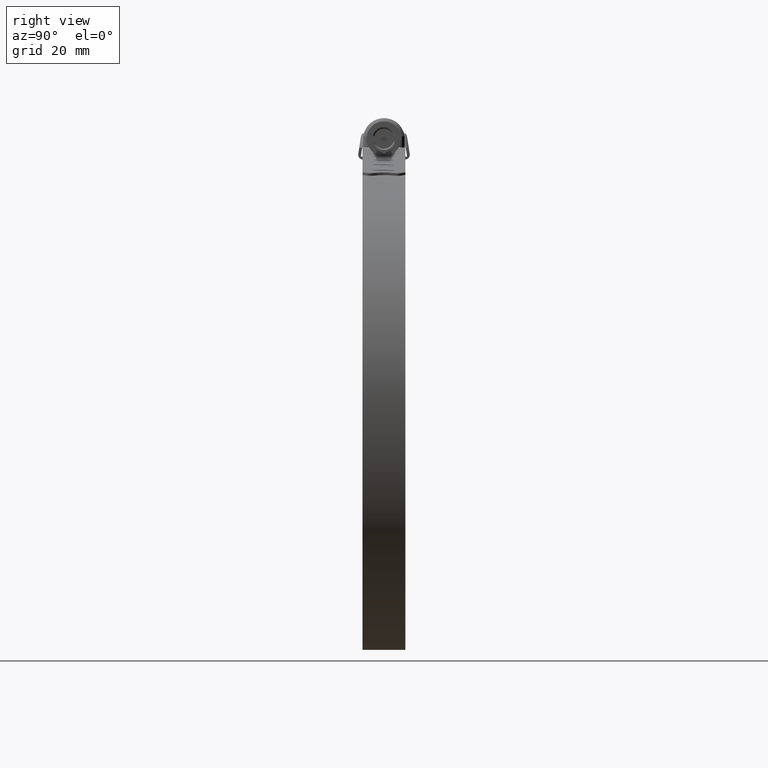
[diagram: clean part render]
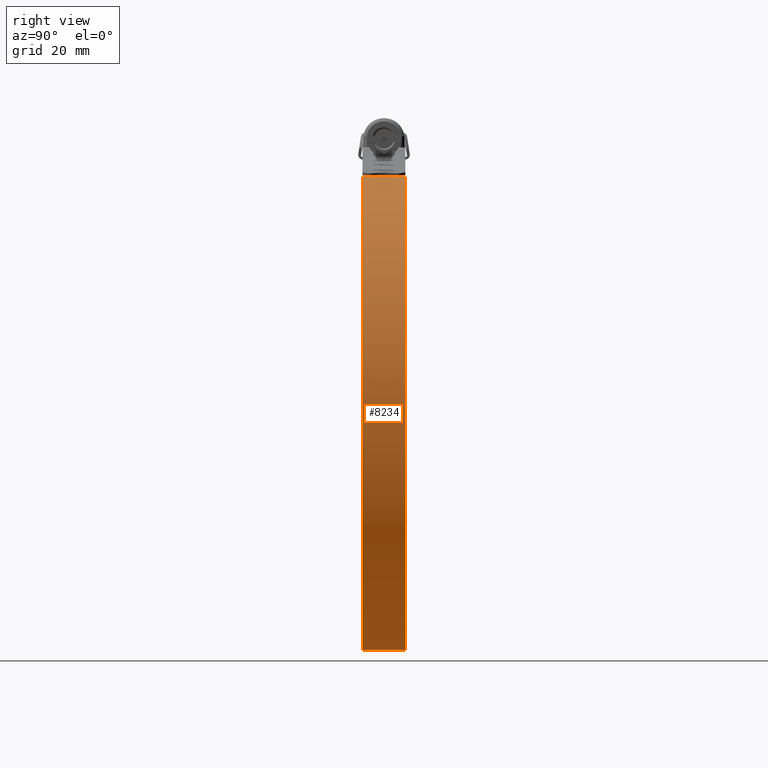
[diagram: same view with one face highlighted and labeled with its STEP entity id]
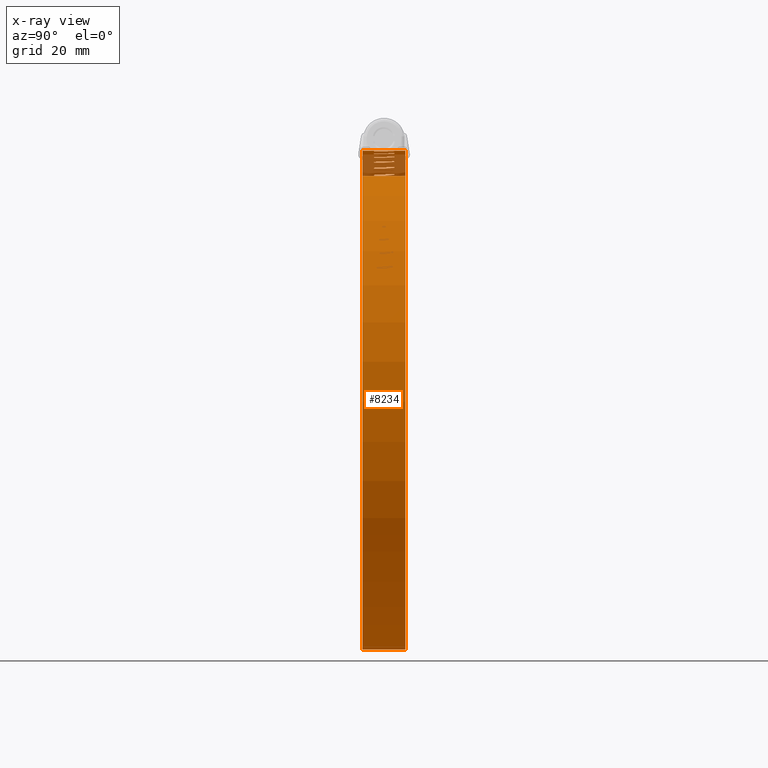
[diagram: x-ray of the same camera — body ghosted, the highlighted face saturated]
A machine part, right view. The second image highlights one B-rep face of the part: STEP entity #8234.
The next image is the same camera in x-ray: the body ghosted, the highlighted face saturated — about 4% of this face is hidden behind the body in this view.
In plain terms, the highlighted face is a freeform B-spline surface patch.
Its self-contained STEP definition (entity closure, byte-faithful):
#3741=CARTESIAN_POINT('',(-8.221552028899289,-2.789310000000000,11.938315712249681));
#3742=VERTEX_POINT('',#3741);
#3743=CARTESIAN_POINT('',(-7.923259091205973,-3.089309903259880,11.970264503313031));
#3744=VERTEX_POINT('',#3743);
#3745=CARTESIAN_POINT('',(-8.221552028899289,-2.789310000000000,11.938315712249681));
#3746=CARTESIAN_POINT('',(-8.221591683650630,-2.828565320437098,11.938389654610759));
#3747=CARTESIAN_POINT('',(-8.204121291462187,-2.916937987842363,11.940401710776440));
#3748=CARTESIAN_POINT('',(-8.108370012012397,-3.047026047517536,11.950724425055290));
#3749=CARTESIAN_POINT('',(-7.991694625653359,-3.089678779113645,11.963072372765660));
#3750=CARTESIAN_POINT('',(-7.923259091205973,-3.089309903259880,11.970264503313031));
#3751=B_SPLINE_CURVE_WITH_KNOTS('',3,(#3745,#3746,#3747,#3748,#3749,#3750),.UNSPECIFIED.,.F.,.U.,(4,1,1,4),(0.000001371097223,0.117858079995215,0.265159511997022,0.471428202494432),.UNSPECIFIED.);
#3752=EDGE_CURVE('',#3742,#3744,#3751,.T.);
#3754=CARTESIAN_POINT('',(-7.624838891678300,-2.789310000000000,12.001032790210020));
#3755=VERTEX_POINT('',#3754);
#3756=CARTESIAN_POINT('',(-7.923259091205973,-3.089309903259880,11.970264503313031));
#3757=CARTESIAN_POINT('',(-7.874428174456710,-3.089395752332023,11.975397010280981));
#3758=CARTESIAN_POINT('',(-7.796404362805419,-3.069604383171958,11.983558262440420));
#3759=CARTESIAN_POINT('',(-7.701249917209433,-2.998610124988940,11.993418133256981));
#3760=CARTESIAN_POINT('',(-7.640388701355049,-2.907129878341668,11.999632877375070));
#3761=CARTESIAN_POINT('',(-7.624815754331972,-2.828573585070373,12.001113348731479));
#3762=CARTESIAN_POINT('',(-7.624838891678300,-2.789310000000000,12.001032790210020));
#3763=B_SPLINE_CURVE_WITH_KNOTS('',3,(#3756,#3757,#3758,#3759,#3760,#3761,#3762),.UNSPECIFIED.,.F.,.U.,(4,1,1,1,4),(0.000001322762132,0.147335706984708,0.235715644839444,0.353572805864779,0.471429988810067),.UNSPECIFIED.);
#3764=EDGE_CURVE('',#3744,#3755,#3763,.T.);
#3808=CARTESIAN_POINT('',(-7.034176406241399,2.848224000000000,12.058416446994521));
#3809=VERTEX_POINT('',#3808);
#3810=CARTESIAN_POINT('',(-7.624838891678300,-2.789310000000000,12.001032790210020));
#3811=CARTESIAN_POINT('',(-7.034176406241399,2.848224000000000,12.058416446994521));
#3812=QUASI_UNIFORM_CURVE('',1,(#3810,#3811),.UNSPECIFIED.,.F.,.U.);
#3813=EDGE_CURVE('',#3755,#3809,#3812,.T.);
#3849=CARTESIAN_POINT('',(-7.295034093121869,3.209041424220218,12.033649295139240));
#3850=VERTEX_POINT('',#3849);
#3851=CARTESIAN_POINT('',(-7.034176406241399,2.848224000000000,12.058416446994521));
#3852=CARTESIAN_POINT('',(-7.022087456684755,2.904564124786597,12.059699341972291));
#3853=CARTESIAN_POINT('',(-7.031272067544672,3.018759844806404,12.059014991469780));
#3854=CARTESIAN_POINT('',(-7.132729453742607,3.159064896488552,12.049382056336951));
#3855=CARTESIAN_POINT('',(-7.237954499322125,3.203189088881322,12.039203901155711));
#3856=CARTESIAN_POINT('',(-7.295034093121869,3.209041424220218,12.033649295139240));
#3857=B_SPLINE_CURVE_WITH_KNOTS('',3,(#3851,#3852,#3853,#3854,#3855,#3856),.UNSPECIFIED.,.F.,.U.,(4,1,1,4),(0.000000720803963,0.172835456486587,0.329929819943661,0.502764555626864),.UNSPECIFIED.);
#3858=EDGE_CURVE('',#3809,#3850,#3857,.T.);
#3860=CARTESIAN_POINT('',(-7.624838891678310,2.910690000000000,12.001032790210360));
#3861=VERTEX_POINT('',#3860);
#3862=CARTESIAN_POINT('',(-7.295034093121869,3.209041424220218,12.033649295139240));
#3863=CARTESIAN_POINT('',(-7.352077671460885,3.215258150563016,12.028116680993310));
#3864=CARTESIAN_POINT('',(-7.464128846624936,3.194112166661174,12.017186157925950));
#3865=CARTESIAN_POINT('',(-7.592404257592684,3.078102848703526,12.004500243654750));
#3866=CARTESIAN_POINT('',(-7.625003896610805,2.968325416027998,12.001125195213110));
#3867=CARTESIAN_POINT('',(-7.624838891678310,2.910690000000000,12.001032790210360));
#3868=B_SPLINE_CURVE_WITH_KNOTS('',3,(#3862,#3863,#3864,#3865,#3866,#3867),.UNSPECIFIED.,.F.,.U.,(4,1,1,4),(0.000000720031006,0.172835185789806,0.329929303133188,0.502763767375124),.UNSPECIFIED.);
#3869=EDGE_CURVE('',#3850,#3861,#3868,.T.);
#3907=CARTESIAN_POINT('',(-8.189565884042160,0.213522000000012,11.941798769206400));
#3908=VERTEX_POINT('',#3907);
#3909=CARTESIAN_POINT('',(-7.624838891678310,2.910690000000000,12.001032790210360));
#3910=CARTESIAN_POINT('',(-8.189565884042160,0.213522000000012,11.941798769206400));
#3911=QUASI_UNIFORM_CURVE('',1,(#3909,#3910),.UNSPECIFIED.,.F.,.U.);
#3912=EDGE_CURVE('',#3861,#3908,#3911,.T.);
#3944=CARTESIAN_POINT('',(-8.221552028899280,-0.095493000000002,11.938315712249601));
#3945=VERTEX_POINT('',#3944);
#3946=CARTESIAN_POINT('',(-8.189565884042160,0.213522000000012,11.941798769206400));
#3947=CARTESIAN_POINT('',(-8.221552028899280,-0.095493000000002,11.938315712249601));
#3948=QUASI_UNIFORM_CURVE('',1,(#3946,#3947),.UNSPECIFIED.,.F.,.U.);
#3949=EDGE_CURVE('',#3908,#3945,#3948,.T.);
#3972=CARTESIAN_POINT('',(-8.221552028899280,-0.095493000000002,11.938315712249601));
#3973=CARTESIAN_POINT('',(-8.221552028899289,-2.789310000000000,11.938315712249681));
#3974=QUASI_UNIFORM_CURVE('',1,(#3972,#3973),.UNSPECIFIED.,.F.,.U.);
#3975=EDGE_CURVE('',#3945,#3742,#3974,.T.);
#3992=CARTESIAN_POINT('',(-13.457871103365740,-0.095493000000002,11.181253574333700));
#3993=VERTEX_POINT('',#3992);
#3994=CARTESIAN_POINT('',(-13.457871103365759,-2.789310000000000,11.181253574333960));
#3995=VERTEX_POINT('',#3994);
#3996=CARTESIAN_POINT('',(-13.457871103365740,-0.095493000000002,11.181253574333700));
#3997=CARTESIAN_POINT('',(-13.457871103365759,-2.789310000000000,11.181253574333960));
#3998=QUASI_UNIFORM_CURVE('',1,(#3996,#3997),.UNSPECIFIED.,.F.,.U.);
#3999=EDGE_CURVE('',#3993,#3995,#3998,.T.);
#4037=CARTESIAN_POINT('',(-13.426205840921000,0.213522000000012,11.186959387412699));
#4038=VERTEX_POINT('',#4037);
#4039=CARTESIAN_POINT('',(-13.426205840921000,0.213522000000012,11.186959387412699));
#4040=CARTESIAN_POINT('',(-13.457871103365740,-0.095493000000002,11.181253574333700));
#4041=QUASI_UNIFORM_CURVE('',1,(#4039,#4040),.UNSPECIFIED.,.F.,.U.);
#4042=EDGE_CURVE('',#4038,#3993,#4041,.T.);
#4065=CARTESIAN_POINT('',(-12.866986451558359,2.910690000000000,11.285442480933760));
#4066=VERTEX_POINT('',#4065);
#4067=CARTESIAN_POINT('',(-12.866986451558359,2.910690000000000,11.285442480933760));
#4068=CARTESIAN_POINT('',(-13.426205840921000,0.213522000000012,11.186959387412699));
#4069=QUASI_UNIFORM_CURVE('',1,(#4067,#4068),.UNSPECIFIED.,.F.,.U.);
#4070=EDGE_CURVE('',#4066,#4038,#4069,.T.);
#4106=CARTESIAN_POINT('',(-12.281765671797260,2.848224000000000,11.383888886171439));
#4107=VERTEX_POINT('',#4106);
#4108=CARTESIAN_POINT('',(-12.540260253285050,3.209041424220217,11.340985553467389));
#4109=VERTEX_POINT('',#4108);
#4110=CARTESIAN_POINT('',(-12.281765671797260,2.848224000000000,11.383888886171439));
#4111=CARTESIAN_POINT('',(-12.269773051990970,2.904581799597345,11.386015782894100));
#4112=CARTESIAN_POINT('',(-12.277269943032969,2.996909527629665,11.384924292094389));
#4113=CARTESIAN_POINT('',(-12.360881197500310,3.144036914417483,11.371103790287290));
#4114=CARTESIAN_POINT('',(-12.462875355756751,3.201451688840907,11.354016866802390));
#4115=CARTESIAN_POINT('',(-12.540260253285050,3.209041424220217,11.340985553467389));
#4116=B_SPLINE_CURVE_WITH_KNOTS('',3,(#4110,#4111,#4112,#4113,#4114,#4115),.UNSPECIFIED.,.F.,.U.,(4,1,1,4),(0.000000720804101,0.172835456486704,0.267049659064118,0.502764555626880),.UNSPECIFIED.);
#4117=EDGE_CURVE('',#4107,#4109,#4116,.T.);
#4119=CARTESIAN_POINT('',(-12.540260253285050,3.209041424220217,11.340985553467389));
#4120=CARTESIAN_POINT('',(-12.596788583413350,3.215252853860539,11.331485625026341));
#4121=CARTESIAN_POINT('',(-12.686555309445479,3.198065592399894,11.316348412171321));
#4122=CARTESIAN_POINT('',(-12.822060300475520,3.098378043237818,11.293358392274641));
#4123=CARTESIAN_POINT('',(-12.867669552726589,2.989531763431976,11.285477261767801));
#4124=CARTESIAN_POINT('',(-12.866986451558359,2.910690000000000,11.285442480933760));
#4125=B_SPLINE_CURVE_WITH_KNOTS('',3,(#4119,#4120,#4121,#4122,#4123,#4124),.UNSPECIFIED.,.F.,.U.,(4,1,1,4),(0.000000720030892,0.172835185789880,0.267049239858299,0.502763767375086),.UNSPECIFIED.);
#4126=EDGE_CURVE('',#4109,#4066,#4125,.T.);
#4164=CARTESIAN_POINT('',(-12.866986451558400,-2.789310000000000,11.285442480933760));
#4165=VERTEX_POINT('',#4164);
#4166=CARTESIAN_POINT('',(-12.866986451558400,-2.789310000000000,11.285442480933760));
#4167=CARTESIAN_POINT('',(-12.281765671797260,2.848224000000000,11.383888886171439));
#4168=QUASI_UNIFORM_CURVE('',1,(#4166,#4167),.UNSPECIFIED.,.F.,.U.);
#4169=EDGE_CURVE('',#4165,#4107,#4168,.T.);
#4205=CARTESIAN_POINT('',(-13.162533427281121,-3.089309903259880,11.233932403224189));
#4206=VERTEX_POINT('',#4205);
#4207=CARTESIAN_POINT('',(-13.457871103365759,-2.789310000000000,11.181253574333960));
#4208=CARTESIAN_POINT('',(-13.457915819478441,-2.828565320437112,11.181324570399550));
#4209=CARTESIAN_POINT('',(-13.440628338230260,-2.916937987842396,11.184550398251501));
#4210=CARTESIAN_POINT('',(-13.345830380232160,-3.047026047517498,11.201527238528071));
#4211=CARTESIAN_POINT('',(-13.230300558540520,-3.089678779113732,11.221983970783530));
#4212=CARTESIAN_POINT('',(-13.162533427281121,-3.089309903259880,11.233932403224189));
#4213=B_SPLINE_CURVE_WITH_KNOTS('',3,(#4207,#4208,#4209,#4210,#4211,#4212),.UNSPECIFIED.,.F.,.U.,(4,1,1,4),(0.000001371097259,0.117858079995269,0.265159511997115,0.471428202494610),.UNSPECIFIED.);
#4214=EDGE_CURVE('',#3995,#4206,#4213,.T.);
#4216=CARTESIAN_POINT('',(-13.162533427281121,-3.089309903259880,11.233932403224189));
#4217=CARTESIAN_POINT('',(-13.123870589993381,-3.089338497081449,11.240749762032390));
#4218=CARTESIAN_POINT('',(-13.036829733699079,-3.071768406568892,11.256062107566381));
#4219=CARTESIAN_POINT('',(-12.908707303134159,-2.975436117350858,11.278459976107120));
#4220=CARTESIAN_POINT('',(-12.866640473942070,-2.858127819916065,11.285641770546000));
#4221=CARTESIAN_POINT('',(-12.866986451558400,-2.789310000000000,11.285442480933760));
#4222=B_SPLINE_CURVE_WITH_KNOTS('',3,(#4216,#4217,#4218,#4219,#4220,#4221),.UNSPECIFIED.,.F.,.U.,(4,1,1,4),(0.000001322762178,0.117858495363546,0.265160522349931,0.471429988809837),.UNSPECIFIED.);
#4223=EDGE_CURVE('',#4206,#4165,#4222,.T.);
#4255=CARTESIAN_POINT('',(-18.628624782597051,-0.095493000000002,10.060768447702101));
#4256=VERTEX_POINT('',#4255);
#4257=CARTESIAN_POINT('',(-18.628624782597051,-2.789310000000000,10.060768447702200));
#4258=VERTEX_POINT('',#4257);
#4259=CARTESIAN_POINT('',(-18.628624782597051,-0.095493000000002,10.060768447702101));
#4260=CARTESIAN_POINT('',(-18.628624782597051,-2.789310000000000,10.060768447702200));
#4261=QUASI_UNIFORM_CURVE('',1,(#4259,#4260),.UNSPECIFIED.,.F.,.U.);
#4262=EDGE_CURVE('',#4256,#4258,#4261,.T.);
#4300=CARTESIAN_POINT('',(-18.597434672540398,0.213522000000012,10.068669218755719));
#4301=VERTEX_POINT('',#4300);
#4302=CARTESIAN_POINT('',(-18.597434672540398,0.213522000000012,10.068669218755719));
#4303=CARTESIAN_POINT('',(-18.628624782597051,-0.095493000000002,10.060768447702101));
#4304=QUASI_UNIFORM_CURVE('',1,(#4302,#4303),.UNSPECIFIED.,.F.,.U.);
#4305=EDGE_CURVE('',#4301,#4256,#4304,.T.);
#4328=CARTESIAN_POINT('',(-18.046447346831350,2.910690000000000,10.205921585061841));
#4329=VERTEX_POINT('',#4328);
#4330=CARTESIAN_POINT('',(-18.046447346831350,2.910690000000000,10.205921585061841));
#4331=CARTESIAN_POINT('',(-18.597434672540398,0.213522000000012,10.068669218755719));
#4332=QUASI_UNIFORM_CURVE('',1,(#4330,#4331),.UNSPECIFIED.,.F.,.U.);
#4333=EDGE_CURVE('',#4329,#4301,#4332,.T.);
#4369=CARTESIAN_POINT('',(-17.469519409558899,2.848224000000000,10.344951117762241));
#4370=VERTEX_POINT('',#4369);
#4371=CARTESIAN_POINT('',(-17.724391526036872,3.209041424220219,10.284120624933660));
#4372=VERTEX_POINT('',#4371);
#4373=CARTESIAN_POINT('',(-17.469519409558899,2.848224000000000,10.344951117762241));
#4374=CARTESIAN_POINT('',(-17.452963270895211,2.925196381643754,10.349092696029389));
#4375=CARTESIAN_POINT('',(-17.474980491710639,3.041300773057018,10.343998644805099));
#4376=CARTESIAN_POINT('',(-17.585546582207840,3.167413135711823,10.317552179922730));
#4377=CARTESIAN_POINT('',(-17.668627802073729,3.203183692382478,10.297568167267711));
#4378=CARTESIAN_POINT('',(-17.724391526036872,3.209041424220219,10.284120624933660));
#4379=B_SPLINE_CURVE_WITH_KNOTS('',3,(#4373,#4374,#4375,#4376,#4377,#4378),.UNSPECIFIED.,.F.,.U.,(4,1,1,4),(0.000000720804111,0.235715617366954,0.329929819943830,0.502764555626948),.UNSPECIFIED.);
#4380=EDGE_CURVE('',#4370,#4372,#4379,.T.);
#4382=CARTESIAN_POINT('',(-17.724391526036872,3.209041424220219,10.284120624933660));
#4383=CARTESIAN_POINT('',(-17.800549841202820,3.217957192158560,10.265781549644689));
#4384=CARTESIAN_POINT('',(-17.910488321386271,3.183333345194988,10.239216653204970));
#4385=CARTESIAN_POINT('',(-18.020794356018460,3.057075543949070,10.212386648772121));
#4386=CARTESIAN_POINT('',(-18.046645892710171,2.968348438752971,10.205984799233470));
#4387=CARTESIAN_POINT('',(-18.046447346831350,2.910690000000000,10.205921585061841));
#4388=B_SPLINE_CURVE_WITH_KNOTS('',3,(#4382,#4383,#4384,#4385,#4386,#4387),.UNSPECIFIED.,.F.,.U.,(4,1,1,4),(0.000000720031203,0.235715247449786,0.329929303133128,0.502763767374902),.UNSPECIFIED.);
#4389=EDGE_CURVE('',#4372,#4329,#4388,.T.);
#4427=CARTESIAN_POINT('',(-18.046447346831400,-2.789310000000000,10.205921585061841));
#4428=VERTEX_POINT('',#4427);
#4429=CARTESIAN_POINT('',(-18.046447346831400,-2.789310000000000,10.205921585061841));
#4430=CARTESIAN_POINT('',(-17.469519409558899,2.848224000000000,10.344951117762241));
#4431=QUASI_UNIFORM_CURVE('',1,(#4429,#4430),.UNSPECIFIED.,.F.,.U.);
#4432=EDGE_CURVE('',#4428,#4370,#4431,.T.);
#4468=CARTESIAN_POINT('',(-18.337681223592440,-3.089309903259880,10.133920668460391));
#4469=VERTEX_POINT('',#4468);
#4470=CARTESIAN_POINT('',(-18.628624782597051,-2.789310000000000,10.060768447702200));
#4471=CARTESIAN_POINT('',(-18.628674584349760,-2.828565318319618,10.060836091212240));
#4472=CARTESIAN_POINT('',(-18.611653452423990,-2.916938232745712,10.065260170940320));
#4473=CARTESIAN_POINT('',(-18.518271561927641,-3.047024662562040,10.088808200054171));
#4474=CARTESIAN_POINT('',(-18.404450947229751,-3.089678946995197,10.117273859249149));
#4475=CARTESIAN_POINT('',(-18.337681223592440,-3.089309903259880,10.133920668460391));
#4476=B_SPLINE_CURVE_WITH_KNOTS('',3,(#4470,#4471,#4472,#4473,#4474,#4475),.UNSPECIFIED.,.F.,.U.,(4,1,1,4),(0.000001371096968,0.117858079995052,0.265159511996960,0.471428202494444),.UNSPECIFIED.);
#4477=EDGE_CURVE('',#4258,#4469,#4476,.T.);
#4479=CARTESIAN_POINT('',(-18.337681223592440,-3.089309903259880,10.133920668460391));
#4480=CARTESIAN_POINT('',(-18.299592817445092,-3.089342374023965,10.143417240906331));
#4481=CARTESIAN_POINT('',(-18.213831555176540,-3.071751472996710,10.164764048807090));
#4482=CARTESIAN_POINT('',(-18.087571570229290,-2.975454682245776,10.196047803158210));
#4483=CARTESIAN_POINT('',(-18.046117972154899,-2.858120247016271,10.206144044593410));
#4484=CARTESIAN_POINT('',(-18.046447346831400,-2.789310000000000,10.205921585061841));
#4485=B_SPLINE_CURVE_WITH_KNOTS('',3,(#4479,#4480,#4481,#4482,#4483,#4484),.UNSPECIFIED.,.F.,.U.,(4,1,1,4),(0.000001322762258,0.117858495363632,0.265160522350064,0.471429988810066),.UNSPECIFIED.);
#4486=EDGE_CURVE('',#4469,#4428,#4485,.T.);
#4518=CARTESIAN_POINT('',(-23.708621674430351,-0.095493000000002,8.582319223260940));
#4519=VERTEX_POINT('',#4518);
#4520=CARTESIAN_POINT('',(-23.708621674430400,-2.789310000000000,8.582319223261031));
#4521=VERTEX_POINT('',#4520);
#4522=CARTESIAN_POINT('',(-23.708621674430351,-0.095493000000002,8.582319223260940));
#4523=CARTESIAN_POINT('',(-23.708621674430400,-2.789310000000000,8.582319223261031));
#4524=QUASI_UNIFORM_CURVE('',1,(#4522,#4523),.UNSPECIFIED.,.F.,.U.);
#4525=EDGE_CURVE('',#4519,#4521,#4524,.T.);
#4563=CARTESIAN_POINT('',(-23.678058671842749,0.213522000000012,8.592376460526509));
#4564=VERTEX_POINT('',#4563);
#4565=CARTESIAN_POINT('',(-23.678058671842749,0.213522000000012,8.592376460526509));
#4566=CARTESIAN_POINT('',(-23.708621674430351,-0.095493000000002,8.582319223260940));
#4567=QUASI_UNIFORM_CURVE('',1,(#4565,#4566),.UNSPECIFIED.,.F.,.U.);
#4568=EDGE_CURVE('',#4564,#4519,#4567,.T.);
#4591=CARTESIAN_POINT('',(-23.137987764653300,2.910690000000000,8.767729419886020));
#4592=VERTEX_POINT('',#4591);
#4593=CARTESIAN_POINT('',(-23.137987764653300,2.910690000000000,8.767729419886020));
#4594=CARTESIAN_POINT('',(-23.678058671842749,0.213522000000012,8.592376460526509));
#4595=QUASI_UNIFORM_CURVE('',1,(#4593,#4594),.UNSPECIFIED.,.F.,.U.);
#4596=EDGE_CURVE('',#4592,#4564,#4595,.T.);
#4632=CARTESIAN_POINT('',(-22.572163404787052,2.848224000000000,8.946664742140731));
#4633=VERTEX_POINT('',#4632);
#4634=CARTESIAN_POINT('',(-22.822171344922712,3.209041424220220,8.868203449234384));
#4635=VERTEX_POINT('',#4634);
#4636=CARTESIAN_POINT('',(-22.572163404787052,2.848224000000000,8.946664742140731));
#4637=CARTESIAN_POINT('',(-22.562756442109059,2.894323024405993,8.949732185755496));
#4638=CARTESIAN_POINT('',(-22.565208311396489,2.985742112461761,8.949132362401445));
#4639=CARTESIAN_POINT('',(-22.639279343765310,3.138555346209700,8.925974901521961));
#4640=CARTESIAN_POINT('',(-22.747369162156431,3.201457128644701,8.891872782814513));
#4641=CARTESIAN_POINT('',(-22.822171344922712,3.209041424220220,8.868203449234384));
#4642=B_SPLINE_CURVE_WITH_KNOTS('',3,(#4636,#4637,#4638,#4639,#4640,#4641),.UNSPECIFIED.,.F.,.U.,(4,1,1,4),(0.000000720803555,0.141409044304789,0.267049659063794,0.502764555626598),.UNSPECIFIED.);
#4643=EDGE_CURVE('',#4633,#4635,#4642,.T.);
#4645=CARTESIAN_POINT('',(-22.822171344922712,3.209041424220220,8.868203449234384));
#4646=CARTESIAN_POINT('',(-22.896845495377409,3.217958161073496,8.844602642266729));
#4647=CARTESIAN_POINT('',(-23.015016534639820,3.180037917190437,8.807152423441941));
#4648=CARTESIAN_POINT('',(-23.117633615434379,3.046725470130198,8.774434326350866));
#4649=CARTESIAN_POINT('',(-23.138097370506902,2.957843718561604,8.767787369611794));
#4650=CARTESIAN_POINT('',(-23.137987764653300,2.910690000000000,8.767729419886020));
#4651=B_SPLINE_CURVE_WITH_KNOTS('',3,(#4645,#4646,#4647,#4648,#4649,#4650),.UNSPECIFIED.,.F.,.U.,(4,1,1,4),(0.000000720031184,0.235715247450079,0.361355666000785,0.502763767375647),.UNSPECIFIED.);
#4652=EDGE_CURVE('',#4635,#4592,#4651,.T.);
#4690=CARTESIAN_POINT('',(-23.137987764653300,-2.789310000000000,8.767729419886020));
#4691=VERTEX_POINT('',#4690);
#4692=CARTESIAN_POINT('',(-23.137987764653300,-2.789310000000000,8.767729419886020));
#4693=CARTESIAN_POINT('',(-22.572163404787052,2.848224000000000,8.946664742140731));
#4694=QUASI_UNIFORM_CURVE('',1,(#4692,#4693),.UNSPECIFIED.,.F.,.U.);
#4695=EDGE_CURVE('',#4691,#4633,#4694,.T.);
#4731=CARTESIAN_POINT('',(-23.423489680278859,-3.089309903259880,8.675588445620958));
#4732=VERTEX_POINT('',#4731);
#4733=CARTESIAN_POINT('',(-23.708621674430400,-2.789310000000000,8.582319223261031));
#4734=CARTESIAN_POINT('',(-23.708680608870321,-2.828557906256765,8.582381738927413));
#4735=CARTESIAN_POINT('',(-23.692010533637951,-2.916953698527162,8.587982103236080));
#4736=CARTESIAN_POINT('',(-23.600486132036099,-3.047005889196438,8.617990788627495));
#4737=CARTESIAN_POINT('',(-23.488937184295139,-3.089686344639922,8.654324045748211));
#4738=CARTESIAN_POINT('',(-23.423489680278859,-3.089309903259880,8.675588445620958));
#4739=B_SPLINE_CURVE_WITH_KNOTS('',3,(#4733,#4734,#4735,#4736,#4737,#4738),.UNSPECIFIED.,.F.,.U.,(4,1,1,4),(0.000001371097266,0.117858079995347,0.265159511997254,0.471428202494743),.UNSPECIFIED.);
#4740=EDGE_CURVE('',#4521,#4732,#4739,.T.);
#4742=CARTESIAN_POINT('',(-23.423489680278859,-3.089309903259880,8.675588445620958));
#4743=CARTESIAN_POINT('',(-23.386156448774319,-3.089342329312746,8.687718815316922));
#4744=CARTESIAN_POINT('',(-23.302093491735210,-3.071751689546372,8.714995924230772));
#4745=CARTESIAN_POINT('',(-23.178323016683219,-2.975454685449236,8.755011020464009));
#4746=CARTESIAN_POINT('',(-23.137674691608911,-2.858120212981138,8.767974319538642));
#4747=CARTESIAN_POINT('',(-23.137987764653300,-2.789310000000000,8.767729419886020));
#4748=B_SPLINE_CURVE_WITH_KNOTS('',3,(#4742,#4743,#4744,#4745,#4746,#4747),.UNSPECIFIED.,.F.,.U.,(4,1,1,4),(0.000001322762109,0.117858495363503,0.265160522349878,0.471429988809732),.UNSPECIFIED.);
#4749=EDGE_CURVE('',#4732,#4691,#4748,.T.);
#4781=CARTESIAN_POINT('',(-28.673112544648149,-0.095493000000002,6.753108757018500));
#4782=VERTEX_POINT('',#4781);
#4783=CARTESIAN_POINT('',(-28.673112544648149,-2.789310000000000,6.753108757018620));
#4784=VERTEX_POINT('',#4783);
#4785=CARTESIAN_POINT('',(-28.673112544648149,-0.095493000000002,6.753108757018500));
#4786=CARTESIAN_POINT('',(-28.673112544648149,-2.789310000000000,6.753108757018620));
#4787=QUASI_UNIFORM_CURVE('',1,(#4785,#4786),.UNSPECIFIED.,.F.,.U.);
#4788=EDGE_CURVE('',#4782,#4784,#4787,.T.);
#4826=CARTESIAN_POINT('',(-28.643325549406001,0.213522000000012,6.765273462647011));
#4827=VERTEX_POINT('',#4826);
#4828=CARTESIAN_POINT('',(-28.643325549406001,0.213522000000012,6.765273462647011));
#4829=CARTESIAN_POINT('',(-28.673112544648149,-0.095493000000002,6.753108757018500));
#4830=QUASI_UNIFORM_CURVE('',1,(#4828,#4829),.UNSPECIFIED.,.F.,.U.);
#4831=EDGE_CURVE('',#4827,#4782,#4830,.T.);
#4854=CARTESIAN_POINT('',(-28.116802231908100,2.910690000000000,6.977872713068270));
#4855=VERTEX_POINT('',#4854);
#4856=CARTESIAN_POINT('',(-28.116802231908100,2.910690000000000,6.977872713068270));
#4857=CARTESIAN_POINT('',(-28.643325549406001,0.213522000000012,6.765273462647011));
#4858=QUASI_UNIFORM_CURVE('',1,(#4856,#4857),.UNSPECIFIED.,.F.,.U.);
#4859=EDGE_CURVE('',#4855,#4827,#4858,.T.);
#4895=CARTESIAN_POINT('',(-27.564838088853001,2.848224000000000,7.195842069973790));
#4896=VERTEX_POINT('',#4895);
#4897=CARTESIAN_POINT('',(-27.808763839093441,3.209041424220217,7.100132232521704));
#4898=VERTEX_POINT('',#4897);
#4899=CARTESIAN_POINT('',(-27.564838088853001,2.848224000000000,7.195842069973790));
#4900=CARTESIAN_POINT('',(-27.555704232556000,2.894293032020832,7.199543861869650));
#4901=CARTESIAN_POINT('',(-27.558411253827462,3.007444559406386,7.198697714011681));
#4902=CARTESIAN_POINT('',(-27.647578791758772,3.154934993379197,7.163741654610020));
#4903=CARTESIAN_POINT('',(-27.755461625792812,3.203155962892408,7.121190967723718));
#4904=CARTESIAN_POINT('',(-27.808763839093441,3.209041424220217,7.100132232521704));
#4905=B_SPLINE_CURVE_WITH_KNOTS('',3,(#4899,#4900,#4901,#4902,#4903,#4904),.UNSPECIFIED.,.F.,.U.,(4,1,1,4),(0.000000720803820,0.141409044304996,0.329929819943541,0.502764555626636),.UNSPECIFIED.);
#4906=EDGE_CURVE('',#4896,#4898,#4905,.T.);
#4908=CARTESIAN_POINT('',(-27.808763839093441,3.209041424220217,7.100132232521704));
#4909=CARTESIAN_POINT('',(-27.881629354534411,3.217957908295049,7.071372178317894));
#4910=CARTESIAN_POINT('',(-27.986799950164059,3.183333028552161,7.029765664761770));
#4911=CARTESIAN_POINT('',(-28.092298757728329,3.057075695620209,6.987845026106453));
#4912=CARTESIAN_POINT('',(-28.117007599958210,2.968348373539070,6.977907696770646));
#4913=CARTESIAN_POINT('',(-28.116802231908100,2.910690000000000,6.977872713068270));
#4914=B_SPLINE_CURVE_WITH_KNOTS('',3,(#4908,#4909,#4910,#4911,#4912,#4913),.UNSPECIFIED.,.F.,.U.,(4,1,1,4),(0.000000720031085,0.235715247450015,0.329929303133478,0.502763767375447),.UNSPECIFIED.);
#4915=EDGE_CURVE('',#4898,#4855,#4914,.T.);
#4953=CARTESIAN_POINT('',(-28.116802231908050,-2.789310000000000,6.977872713068051));
#4954=VERTEX_POINT('',#4953);
#4955=CARTESIAN_POINT('',(-28.116802231908050,-2.789310000000000,6.977872713068051));
#4956=CARTESIAN_POINT('',(-27.564838088853001,2.848224000000000,7.195842069973790));
#4957=QUASI_UNIFORM_CURVE('',1,(#4955,#4956),.UNSPECIFIED.,.F.,.U.);
#4958=EDGE_CURVE('',#4954,#4896,#4957,.T.);
#4994=CARTESIAN_POINT('',(-28.395181249764629,-3.089309903259880,6.866040582704112));
#4995=VERTEX_POINT('',#4994);
#4996=CARTESIAN_POINT('',(-28.673112544648149,-2.789310000000000,6.753108757018620));
#4997=CARTESIAN_POINT('',(-28.673172225355831,-2.828564236732879,6.753168425245016));
#4998=CARTESIAN_POINT('',(-28.656928270412429,-2.916941860961971,6.759920034504086));
#4999=CARTESIAN_POINT('',(-28.567740430628142,-3.047019511173638,6.796231887157374));
#5000=CARTESIAN_POINT('',(-28.458980943206210,-3.089682489866624,6.840264628544390));
#5001=CARTESIAN_POINT('',(-28.395181249764629,-3.089309903259880,6.866040582704112));
#5002=B_SPLINE_CURVE_WITH_KNOTS('',3,(#4996,#4997,#4998,#4999,#5000,#5001),.UNSPECIFIED.,.F.,.U.,(4,1,1,4),(0.000001371097351,0.117858079995332,0.265159511997133,0.471428202494577),.UNSPECIFIED.);
#5003=EDGE_CURVE('',#4784,#4995,#5002,.T.);
#5005=CARTESIAN_POINT('',(-28.395181249764629,-3.089309903259880,6.866040582704112));
#5006=CARTESIAN_POINT('',(-28.358785131950860,-3.089342329312744,6.880745638012387));
#5007=CARTESIAN_POINT('',(-28.276829702981829,-3.071751689546358,6.913820236715421));
#5008=CARTESIAN_POINT('',(-28.156152038596090,-2.975454685449214,6.962371650078596));
#5009=CARTESIAN_POINT('',(-28.116507004830058,-2.858120212981183,6.978138855029048));
#5010=CARTESIAN_POINT('',(-28.116802231908050,-2.789310000000000,6.977872713068051));
#5011=B_SPLINE_CURVE_WITH_KNOTS('',3,(#5005,#5006,#5007,#5008,#5009,#5010),.UNSPECIFIED.,.F.,.U.,(4,1,1,4),(0.000001322762012,0.117858495363433,0.265160522349900,0.471429988809891),.UNSPECIFIED.);
#5012=EDGE_CURVE('',#4995,#4954,#5011,.T.);
#5044=CARTESIAN_POINT('',(-33.497910892759649,-0.095493000000002,4.582048778494751));
#5045=VERTEX_POINT('',#5044);
#5046=CARTESIAN_POINT('',(-33.497910892759712,-2.789310000000000,4.582048778495000));
#5047=VERTEX_POINT('',#5046);
#5048=CARTESIAN_POINT('',(-33.497910892759649,-0.095493000000002,4.582048778494751));
#5049=CARTESIAN_POINT('',(-33.497910892759712,-2.789310000000000,4.582048778495000));
#5050=QUASI_UNIFORM_CURVE('',1,(#5048,#5049),.UNSPECIFIED.,.F.,.U.);
#5051=EDGE_CURVE('',#5045,#5047,#5050,.T.);
#5089=CARTESIAN_POINT('',(-33.469045024109647,0.213522000000012,4.596261687263470));
#5090=VERTEX_POINT('',#5089);
#5091=CARTESIAN_POINT('',(-33.469045024109647,0.213522000000012,4.596261687263470));
#5092=CARTESIAN_POINT('',(-33.497910892759649,-0.095493000000002,4.582048778494751));
#5093=QUASI_UNIFORM_CURVE('',1,(#5091,#5092),.UNSPECIFIED.,.F.,.U.);
#5094=EDGE_CURVE('',#5090,#5045,#5093,.T.);
#5117=CARTESIAN_POINT('',(-32.958634464980051,2.910690000000000,4.845071466568101));
#5118=VERTEX_POINT('',#5117);
#5119=CARTESIAN_POINT('',(-32.958634464980051,2.910690000000000,4.845071466568101));
#5120=CARTESIAN_POINT('',(-33.469045024109647,0.213522000000012,4.596261687263470));
#5121=QUASI_UNIFORM_CURVE('',1,(#5119,#5120),.UNSPECIFIED.,.F.,.U.);
#5122=EDGE_CURVE('',#5118,#5090,#5121,.T.);
#5158=CARTESIAN_POINT('',(-32.423219652557947,2.848224000000000,5.101012933328420));
#5159=VERTEX_POINT('',#5158);
#5160=CARTESIAN_POINT('',(-32.659874831167407,3.209041424220219,4.988520840037625));
#5161=VERTEX_POINT('',#5160);
#5162=CARTESIAN_POINT('',(-32.423219652557947,2.848224000000000,5.101012933328420));
#5163=CARTESIAN_POINT('',(-32.407883583862102,2.925199093567420,5.108507570034888));
#5164=CARTESIAN_POINT('',(-32.428368710888783,3.041295944050192,5.098943284572704));
#5165=CARTESIAN_POINT('',(-32.531010076885799,3.167417345721548,5.050091587691323));
#5166=CARTESIAN_POINT('',(-32.608129151168441,3.203181460813087,5.013266738077482));
#5167=CARTESIAN_POINT('',(-32.659874831167407,3.209041424220219,4.988520840037625));
#5168=B_SPLINE_CURVE_WITH_KNOTS('',3,(#5162,#5163,#5164,#5165,#5166,#5167),.UNSPECIFIED.,.F.,.U.,(4,1,1,4),(0.000000720803955,0.235715617366877,0.329929819943736,0.502764555626834),.UNSPECIFIED.);
#5169=EDGE_CURVE('',#5159,#5161,#5168,.T.);
#5171=CARTESIAN_POINT('',(-32.659874831167407,3.209041424220219,4.988520840037625));
#5172=CARTESIAN_POINT('',(-32.730558571608462,3.217960844733552,4.954747089840666));
#5173=CARTESIAN_POINT('',(-32.832564682993208,3.183328160924289,4.905908435825997));
#5174=CARTESIAN_POINT('',(-32.934890635811144,3.057080528779288,4.856726707105186));
#5175=CARTESIAN_POINT('',(-32.958840052162330,2.968346304025686,4.845092857747487));
#5176=CARTESIAN_POINT('',(-32.958634464980051,2.910690000000000,4.845071466568101));
#5177=B_SPLINE_CURVE_WITH_KNOTS('',3,(#5171,#5172,#5173,#5174,#5175,#5176),.UNSPECIFIED.,.F.,.U.,(4,1,1,4),(0.000000720030732,0.235715247449895,0.329929303133291,0.502763767375167),.UNSPECIFIED.);
#5178=EDGE_CURVE('',#5161,#5118,#5177,.T.);
#5216=CARTESIAN_POINT('',(-32.958634464980150,-2.789310000000000,4.845071466568320));
#5217=VERTEX_POINT('',#5216);
#5218=CARTESIAN_POINT('',(-32.958634464980150,-2.789310000000000,4.845071466568320));
#5219=CARTESIAN_POINT('',(-32.423219652557947,2.848224000000000,5.101012933328420));
#5220=QUASI_UNIFORM_CURVE('',1,(#5218,#5219),.UNSPECIFIED.,.F.,.U.);
#5221=EDGE_CURVE('',#5217,#5159,#5220,.T.);
#5257=CARTESIAN_POINT('',(-33.228534350474938,-3.089309903259881,4.714093015003146));
#5258=VERTEX_POINT('',#5257);
#5259=CARTESIAN_POINT('',(-33.497910892759712,-2.789310000000000,4.582048778495000));
#5260=CARTESIAN_POINT('',(-33.497978513576193,-2.828557556318657,4.582102210054996));
#5261=CARTESIAN_POINT('',(-33.482248282932133,-2.916954350983109,4.589968981852712));
#5262=CARTESIAN_POINT('',(-33.395793014906580,-3.047006116764640,4.632422372146634));
#5263=CARTESIAN_POINT('',(-33.290385520338887,-3.089685499870246,4.683927010755053));
#5264=CARTESIAN_POINT('',(-33.228534350474938,-3.089309903259881,4.714093015003146));
#5265=B_SPLINE_CURVE_WITH_KNOTS('',3,(#5259,#5260,#5261,#5262,#5263,#5264),.UNSPECIFIED.,.F.,.U.,(4,1,1,4),(0.000001371096917,0.117858079995063,0.265159511997050,0.471428202494606),.UNSPECIFIED.);
#5266=EDGE_CURVE('',#5047,#5258,#5265,.T.);
#5268=CARTESIAN_POINT('',(-33.228534350474938,-3.089309903259881,4.714093015003146));
#5269=CARTESIAN_POINT('',(-33.193252715820350,-3.089342374023960,4.731301089479004));
#5270=CARTESIAN_POINT('',(-33.113803793820651,-3.071751472996680,4.770012187455334));
#5271=CARTESIAN_POINT('',(-32.996807150738320,-2.975454682245803,4.826863243668889));
#5272=CARTESIAN_POINT('',(-32.958358539867902,-2.858120247016224,4.845357545671248));
#5273=CARTESIAN_POINT('',(-32.958634464980150,-2.789310000000000,4.845071466568320));
#5274=B_SPLINE_CURVE_WITH_KNOTS('',3,(#5268,#5269,#5270,#5271,#5272,#5273),.UNSPECIFIED.,.F.,.U.,(4,1,1,4),(0.000001322762381,0.117858495363646,0.265160522350015,0.471429988809859),.UNSPECIFIED.);
#5275=EDGE_CURVE('',#5258,#5217,#5274,.T.);
#5307=CARTESIAN_POINT('',(-38.159510786199853,-0.095493000000002,2.079716473670795));
#5308=VERTEX_POINT('',#5307);
#5309=CARTESIAN_POINT('',(-38.159510786199853,-2.789310000000000,2.079716473670890));
#5310=VERTEX_POINT('',#5309);
#5311=CARTESIAN_POINT('',(-38.159510786199853,-0.095493000000002,2.079716473670795));
#5312=CARTESIAN_POINT('',(-38.159510786199853,-2.789310000000000,2.079716473670890));
#5313=QUASI_UNIFORM_CURVE('',1,(#5311,#5312),.UNSPECIFIED.,.F.,.U.);
#5314=EDGE_CURVE('',#5308,#5310,#5313,.T.);
#5352=CARTESIAN_POINT('',(-38.131706675752348,0.213522000000012,2.095908341716690));
#5353=VERTEX_POINT('',#5352);
#5354=CARTESIAN_POINT('',(-38.131706675752348,0.213522000000012,2.095908341716690));
#5355=CARTESIAN_POINT('',(-38.159510786199853,-0.095493000000002,2.079716473670795));
#5356=QUASI_UNIFORM_CURVE('',1,(#5354,#5355),.UNSPECIFIED.,.F.,.U.);
#5357=EDGE_CURVE('',#5353,#5308,#5356,.T.);
#5380=CARTESIAN_POINT('',(-37.639895543929001,2.910690000000000,2.379716473670635));
#5381=VERTEX_POINT('',#5380);
#5382=CARTESIAN_POINT('',(-37.639895543929001,2.910690000000000,2.379716473670635));
#5383=CARTESIAN_POINT('',(-38.131706675752348,0.213522000000012,2.095908341716690));
#5384=QUASI_UNIFORM_CURVE('',1,(#5382,#5383),.UNSPECIFIED.,.F.,.U.);
#5385=EDGE_CURVE('',#5381,#5353,#5384,.T.);
#5421=CARTESIAN_POINT('',(-37.123638549286248,2.848224000000000,2.672383129186650));
#5422=VERTEX_POINT('',#5421);
#5423=CARTESIAN_POINT('',(-37.351870196022759,3.209041424220219,2.543656830228144));
#5424=VERTEX_POINT('',#5423);
#5425=CARTESIAN_POINT('',(-37.123638549286248,2.848224000000000,2.672383129186650));
#5426=CARTESIAN_POINT('',(-37.108865958053137,2.925195391752258,2.680927407854389));
#5427=CARTESIAN_POINT('',(-37.128625416105990,3.041301175178798,2.669962347025090));
#5428=CARTESIAN_POINT('',(-37.227618420270652,3.167412774108136,2.614064402693110));
#5429=CARTESIAN_POINT('',(-37.301974733799767,3.203184305369643,2.571953196016710));
#5430=CARTESIAN_POINT('',(-37.351870196022759,3.209041424220219,2.543656830228144));
#5431=B_SPLINE_CURVE_WITH_KNOTS('',3,(#5425,#5426,#5427,#5428,#5429,#5430),.UNSPECIFIED.,.F.,.U.,(4,1,1,4),(0.000000720803979,0.235715617366772,0.329929819943659,0.502764555626832),.UNSPECIFIED.);
#5432=EDGE_CURVE('',#5422,#5424,#5431,.T.);
#5434=CARTESIAN_POINT('',(-37.351870196022759,3.209041424220219,2.543656830228144));
#5435=CARTESIAN_POINT('',(-37.420027294204260,3.217960619587967,2.505033864541723));
#5436=CARTESIAN_POINT('',(-37.518375657074053,3.183328265528115,2.449199984691403));
#5437=CARTESIAN_POINT('',(-37.617022751025239,3.057079587291381,2.392999510575214));
#5438=CARTESIAN_POINT('',(-37.640101148358511,2.968346533463961,2.379724024487067));
#5439=CARTESIAN_POINT('',(-37.639895543929001,2.910690000000000,2.379716473670635));
#5440=B_SPLINE_CURVE_WITH_KNOTS('',3,(#5434,#5435,#5436,#5437,#5438,#5439),.UNSPECIFIED.,.F.,.U.,(4,1,1,4),(0.000000720031186,0.235715247450006,0.329929303133393,0.502763767375240),.UNSPECIFIED.);
#5441=EDGE_CURVE('',#5424,#5381,#5440,.T.);
#5479=CARTESIAN_POINT('',(-37.639895543929050,-2.789310000000000,2.379716473670635));
#5480=VERTEX_POINT('',#5479);
#5481=CARTESIAN_POINT('',(-37.639895543929050,-2.789310000000000,2.379716473670635));
#5482=CARTESIAN_POINT('',(-37.123638549286248,2.848224000000000,2.672383129186650));
#5483=QUASI_UNIFORM_CURVE('',1,(#5481,#5482),.UNSPECIFIED.,.F.,.U.);
#5484=EDGE_CURVE('',#5480,#5422,#5483,.T.);
#5520=CARTESIAN_POINT('',(-37.900001371950097,-3.089309903259881,2.230229814754921));
#5521=VERTEX_POINT('',#5520);
#5522=CARTESIAN_POINT('',(-38.159510786199853,-2.789310000000000,2.079716473670890));
#5523=CARTESIAN_POINT('',(-38.159906914720317,-2.858125404385040,2.079645014488041));
#5524=CARTESIAN_POINT('',(-38.123059879865110,-2.975442139618367,2.101186733044111));
#5525=CARTESIAN_POINT('',(-38.010526775930273,-3.071760032474415,2.166377840865576));
#5526=CARTESIAN_POINT('',(-37.933991098238337,-3.089345063465677,2.210605917459777));
#5527=CARTESIAN_POINT('',(-37.900001371950097,-3.089309903259881,2.230229814754921));
#5528=B_SPLINE_CURVE_WITH_KNOTS('',3,(#5522,#5523,#5524,#5525,#5526,#5527),.UNSPECIFIED.,.F.,.U.,(4,1,1,4),(0.000001371096994,0.206270004511120,0.353571457123854,0.471428202494789),.UNSPECIFIED.);
#5529=EDGE_CURVE('',#5310,#5521,#5528,.T.);
#5531=CARTESIAN_POINT('',(-37.900001371950097,-3.089309903259881,2.230229814754921));
#5532=CARTESIAN_POINT('',(-37.840409185648980,-3.089683213230901,2.264636232557406));
#5533=CARTESIAN_POINT('',(-37.738753106792622,-3.047019785994689,2.323229909506303));
#5534=CARTESIAN_POINT('',(-37.655229788329159,-2.916942870569514,2.371154889340043));
#5535=CARTESIAN_POINT('',(-37.639906132923883,-2.828563998857143,2.379800056939993));
#5536=CARTESIAN_POINT('',(-37.639895543929050,-2.789310000000000,2.379716473670635));
#5537=B_SPLINE_CURVE_WITH_KNOTS('',3,(#5531,#5532,#5533,#5534,#5535,#5536),.UNSPECIFIED.,.F.,.U.,(4,1,1,4),(0.000001322762127,0.206270773035626,0.353572805864495,0.471429988809651),.UNSPECIFIED.);
#5538=EDGE_CURVE('',#5521,#5480,#5537,.T.);
#5570=CARTESIAN_POINT('',(-42.635201378870207,-0.095493000000002,-0.741697045997664));
#5571=VERTEX_POINT('',#5570);
#5572=CARTESIAN_POINT('',(-42.635201378870249,-2.789310000000000,-0.741697045997580));
#5573=VERTEX_POINT('',#5572);
#5574=CARTESIAN_POINT('',(-42.635201378870207,-0.095493000000002,-0.741697045997664));
#5575=CARTESIAN_POINT('',(-42.635201378870249,-2.789310000000000,-0.741697045997580));
#5576=QUASI_UNIFORM_CURVE('',1,(#5574,#5575),.UNSPECIFIED.,.F.,.U.);
#5577=EDGE_CURVE('',#5571,#5573,#5576,.T.);
#5615=CARTESIAN_POINT('',(-42.608594485456599,0.213522000000012,-0.723605103828393));
#5616=VERTEX_POINT('',#5615);
#5617=CARTESIAN_POINT('',(-42.608594485456599,0.213522000000012,-0.723605103828393));
#5618=CARTESIAN_POINT('',(-42.635201378870207,-0.095493000000002,-0.741697045997664));
#5619=QUASI_UNIFORM_CURVE('',1,(#5617,#5618),.UNSPECIFIED.,.F.,.U.);
#5620=EDGE_CURVE('',#5616,#5571,#5619,.T.);
#5643=CARTESIAN_POINT('',(-42.137778835337102,2.910690000000000,-0.406181303915343));
#5644=VERTEX_POINT('',#5643);
#5645=CARTESIAN_POINT('',(-42.137778835337102,2.910690000000000,-0.406181303915343));
#5646=CARTESIAN_POINT('',(-42.608594485456599,0.213522000000012,-0.723605103828393));
#5647=QUASI_UNIFORM_CURVE('',1,(#5645,#5646),.UNSPECIFIED.,.F.,.U.);
#5648=EDGE_CURVE('',#5644,#5616,#5647,.T.);
#5684=CARTESIAN_POINT('',(-41.643194810657548,2.848224000000000,-0.078215302170961));
#5685=VERTEX_POINT('',#5684);
#5686=CARTESIAN_POINT('',(-41.861891003879549,3.209041424220223,-0.222548665207713));
#5687=VERTEX_POINT('',#5686);
#5688=CARTESIAN_POINT('',(-41.643194810657548,2.848224000000000,-0.078215302170961));
#5689=CARTESIAN_POINT('',(-41.634997302159142,2.894321716838563,-0.072673474986375));
#5690=CARTESIAN_POINT('',(-41.637190106148132,2.985743616031363,-0.073926712068561));
#5691=CARTESIAN_POINT('',(-41.702006927359882,3.138553969991115,-0.116602671633783));
#5692=CARTESIAN_POINT('',(-41.796511643570753,3.201457841612992,-0.179178601254488));
#5693=CARTESIAN_POINT('',(-41.861891003879549,3.209041424220223,-0.222548665207713));
#5694=B_SPLINE_CURVE_WITH_KNOTS('',3,(#5688,#5689,#5690,#5691,#5692,#5693),.UNSPECIFIED.,.F.,.U.,(4,1,1,4),(0.000000720802400,0.141409044304000,0.267049659063317,0.502764555626462),.UNSPECIFIED.);
#5695=EDGE_CURVE('',#5685,#5687,#5694,.T.);
#5697=CARTESIAN_POINT('',(-41.861891003879549,3.209041424220223,-0.222548665207713));
#5698=CARTESIAN_POINT('',(-41.909659821931342,3.215258024655558,-0.254213834554348));
#5699=CARTESIAN_POINT('',(-42.003465604120592,3.194112973638963,-0.316471102395189));
#5700=CARTESIAN_POINT('',(-42.110764900603350,3.078100713007142,-0.387890121399983));
#5701=CARTESIAN_POINT('',(-42.137970736039740,2.968328254309218,-0.406179049662415));
#5702=CARTESIAN_POINT('',(-42.137778835337102,2.910690000000000,-0.406181303915343));
#5703=B_SPLINE_CURVE_WITH_KNOTS('',3,(#5697,#5698,#5699,#5700,#5701,#5702),.UNSPECIFIED.,.F.,.U.,(4,1,1,4),(0.000000720030852,0.172835185789997,0.329929303133732,0.502763767375849),.UNSPECIFIED.);
#5704=EDGE_CURVE('',#5687,#5644,#5703,.T.);
#5742=CARTESIAN_POINT('',(-42.137778835337301,-2.789310000000000,-0.406181303915121));
#5743=VERTEX_POINT('',#5742);
#5744=CARTESIAN_POINT('',(-42.137778835337301,-2.789310000000000,-0.406181303915121));
#5745=CARTESIAN_POINT('',(-41.643194810657548,2.848224000000000,-0.078215302170961));
#5746=QUASI_UNIFORM_CURVE('',1,(#5744,#5745),.UNSPECIFIED.,.F.,.U.);
#5747=EDGE_CURVE('',#5743,#5685,#5746,.T.);
#5783=CARTESIAN_POINT('',(-42.386823396436547,-3.089309903259880,-0.573447886206454));
#5784=VERTEX_POINT('',#5783);
#5785=CARTESIAN_POINT('',(-42.635201378870249,-2.789310000000000,-0.741697045997580));
#5786=CARTESIAN_POINT('',(-42.635275943758963,-2.828557468427503,-0.741653657551137));
#5787=CARTESIAN_POINT('',(-42.620793230556679,-2.916954729716433,-0.731673941249060));
#5788=CARTESIAN_POINT('',(-42.541087153415383,-3.047005217786659,-0.677601084833834));
#5789=CARTESIAN_POINT('',(-42.443875205304927,-3.089686960714116,-0.611928917187377));
#5790=CARTESIAN_POINT('',(-42.386823396436547,-3.089309903259880,-0.573447886206454));
#5791=B_SPLINE_CURVE_WITH_KNOTS('',3,(#5785,#5786,#5787,#5788,#5789,#5790),.UNSPECIFIED.,.F.,.U.,(4,1,1,4),(0.000001371097568,0.117858079995519,0.265159511997228,0.471428202494539),.UNSPECIFIED.);
#5792=EDGE_CURVE('',#5573,#5784,#5791,.T.);
#5794=CARTESIAN_POINT('',(-42.386823396436547,-3.089309903259880,-0.573447886206454));
#5795=CARTESIAN_POINT('',(-42.354285639034110,-3.089346946496210,-0.551500803314041));
#5796=CARTESIAN_POINT('',(-42.280981162569553,-3.071759083423619,-0.502098291608842));
#5797=CARTESIAN_POINT('',(-42.173057778362100,-2.975441963239440,-0.429532957321230));
#5798=CARTESIAN_POINT('',(-42.137541710097572,-2.858126778953421,-0.405857096336500));
#5799=CARTESIAN_POINT('',(-42.137778835337301,-2.789310000000000,-0.406181303915121));
#5800=B_SPLINE_CURVE_WITH_KNOTS('',3,(#5794,#5795,#5796,#5797,#5798,#5799),.UNSPECIFIED.,.F.,.U.,(4,1,1,4),(0.000001322762397,0.117858495363664,0.265160522349979,0.471429988809883),.UNSPECIFIED.);
#5801=EDGE_CURVE('',#5784,#5743,#5800,.T.);
#5833=CARTESIAN_POINT('',(-46.903177556098299,-0.095493000000002,-3.868446137450505));
#5834=VERTEX_POINT('',#5833);
#5835=CARTESIAN_POINT('',(-46.903177556098299,-2.789310000000000,-3.868446137450410));
#5836=VERTEX_POINT('',#5835);
#5837=CARTESIAN_POINT('',(-46.903177556098299,-0.095493000000002,-3.868446137450505));
#5838=CARTESIAN_POINT('',(-46.903177556098299,-2.789310000000000,-3.868446137450410));
#5839=QUASI_UNIFORM_CURVE('',1,(#5837,#5838),.UNSPECIFIED.,.F.,.U.);
#5840=EDGE_CURVE('',#5834,#5836,#5839,.T.);
#5878=CARTESIAN_POINT('',(-46.877897505828699,0.213522000000012,-3.848542263280955));
#5879=VERTEX_POINT('',#5878);
#5880=CARTESIAN_POINT('',(-46.877897505828699,0.213522000000012,-3.848542263280955));
#5881=CARTESIAN_POINT('',(-46.903177556098299,-0.095493000000002,-3.868446137450505));
#5882=QUASI_UNIFORM_CURVE('',1,(#5880,#5881),.UNSPECIFIED.,.F.,.U.);
#5883=EDGE_CURVE('',#5879,#5834,#5882,.T.);
#5906=CARTESIAN_POINT('',(-46.430371103934000,2.910690000000000,-3.499049252255305));
#5907=VERTEX_POINT('',#5906);
#5908=CARTESIAN_POINT('',(-46.430371103934000,2.910690000000000,-3.499049252255305));
#5909=CARTESIAN_POINT('',(-46.877897505828699,0.213522000000012,-3.848542263280955));
#5910=QUASI_UNIFORM_CURVE('',1,(#5908,#5909),.UNSPECIFIED.,.F.,.U.);
#5911=EDGE_CURVE('',#5907,#5879,#5910,.T.);
#5947=CARTESIAN_POINT('',(-45.959869612870698,2.848224000000000,-3.137381721675615));
#5948=VERTEX_POINT('',#5947);
#5949=CARTESIAN_POINT('',(-46.167964886708539,3.209041424220219,-3.296618971154743));
#5950=VERTEX_POINT('',#5949);
#5951=CARTESIAN_POINT('',(-45.959869612870698,2.848224000000000,-3.137381721675615));
#5952=CARTESIAN_POINT('',(-45.946429844114512,2.925195789681639,-3.126864587759267));
#5953=CARTESIAN_POINT('',(-45.964471322445242,3.041301266036093,-3.140473199662479));
#5954=CARTESIAN_POINT('',(-46.054721627072837,3.167413566147250,-3.209604452182494));
#5955=CARTESIAN_POINT('',(-46.122492235749320,3.203183210274928,-3.261653217742972));
#5956=CARTESIAN_POINT('',(-46.167964886708539,3.209041424220219,-3.296618971154743));
#5957=B_SPLINE_CURVE_WITH_KNOTS('',3,(#5951,#5952,#5953,#5954,#5955,#5956),.UNSPECIFIED.,.F.,.U.,(4,1,1,4),(0.000000720804693,0.235715617366961,0.329929819943595,0.502764555626482),.UNSPECIFIED.);
#5958=EDGE_CURVE('',#5948,#5950,#5957,.T.);
#5960=CARTESIAN_POINT('',(-46.167964886708539,3.209041424220219,-3.296618971154743));
#5961=CARTESIAN_POINT('',(-46.230083025356102,3.217960653909715,-3.344351402188819));
#5962=CARTESIAN_POINT('',(-46.319704270360411,3.183327798698866,-3.413329801054919));
#5963=CARTESIAN_POINT('',(-46.409569266530212,3.057080281961486,-3.482711988712020));
#5964=CARTESIAN_POINT('',(-46.430575722911868,2.968345557399903,-3.499070364625224));
#5965=CARTESIAN_POINT('',(-46.430371103934000,2.910690000000000,-3.499049252255305));
#5966=B_SPLINE_CURVE_WITH_KNOTS('',3,(#5960,#5961,#5962,#5963,#5964,#5965),.UNSPECIFIED.,.F.,.U.,(4,1,1,4),(0.000000720030564,0.235715247449990,0.329929303133544,0.502763767375812),.UNSPECIFIED.);
#5967=EDGE_CURVE('',#5950,#5907,#5966,.T.);
#6005=CARTESIAN_POINT('',(-46.430371103934199,-2.789310000000000,-3.499049252255080));
#6006=VERTEX_POINT('',#6005);
#6007=CARTESIAN_POINT('',(-46.430371103934199,-2.789310000000000,-3.499049252255080));
#6008=CARTESIAN_POINT('',(-45.959869612870698,2.848224000000000,-3.137381721675615));
#6009=QUASI_UNIFORM_CURVE('',1,(#6007,#6008),.UNSPECIFIED.,.F.,.U.);
#6010=EDGE_CURVE('',#6006,#5948,#6009,.T.);
#6046=CARTESIAN_POINT('',(-46.667141078043869,-3.089309903259880,-3.683280851946131));
#6047=VERTEX_POINT('',#6046);
#6048=CARTESIAN_POINT('',(-46.903177556098299,-2.789310000000000,-3.868446137450410));
#6049=CARTESIAN_POINT('',(-46.903248323475808,-2.828569079181038,-3.868402837232384));
#6050=CARTESIAN_POINT('',(-46.889511017570477,-2.916946105293281,-3.857448139888577));
#6051=CARTESIAN_POINT('',(-46.813759095905553,-3.047011353875990,-3.797937624621332));
#6052=CARTESIAN_POINT('',(-46.721370430938180,-3.089684400941783,-3.725648525465884));
#6053=CARTESIAN_POINT('',(-46.667141078043869,-3.089309903259880,-3.683280851946131));
#6054=B_SPLINE_CURVE_WITH_KNOTS('',3,(#6048,#6049,#6050,#6051,#6052,#6053),.UNSPECIFIED.,.F.,.U.,(4,1,1,4),(0.000001371097148,0.117858079995163,0.265159511996998,0.471428202494528),.UNSPECIFIED.);
#6055=EDGE_CURVE('',#5836,#6047,#6054,.T.);
#6057=CARTESIAN_POINT('',(-46.667141078043869,-3.089309903259880,-3.683280851946131));
#6058=CARTESIAN_POINT('',(-46.612919167947616,-3.089683954745943,-3.640917113635421));
#6059=CARTESIAN_POINT('',(-46.520404609082867,-3.047019556000422,-3.568743959997885));
#6060=CARTESIAN_POINT('',(-46.444363466676798,-2.916941825438162,-3.509660767448628));
#6061=CARTESIAN_POINT('',(-46.430393748886317,-2.828564457238711,-3.498968366284660));
#6062=CARTESIAN_POINT('',(-46.430371103934199,-2.789310000000000,-3.499049252255080));
#6063=B_SPLINE_CURVE_WITH_KNOTS('',3,(#6057,#6058,#6059,#6060,#6061,#6062),.UNSPECIFIED.,.F.,.U.,(4,1,1,4),(0.000001322762270,0.206270773035782,0.353572805864714,0.471429988809974),.UNSPECIFIED.);
#6064=EDGE_CURVE('',#6047,#6006,#6063,.T.);
#6096=CARTESIAN_POINT('',(-50.942646166963797,-0.095493000000002,-7.285297593413680));
#6097=VERTEX_POINT('',#6096);
#6098=CARTESIAN_POINT('',(-50.942646166963897,-2.789310000000000,-7.285297593413560));
#6099=VERTEX_POINT('',#6098);
#6100=CARTESIAN_POINT('',(-50.942646166963797,-0.095493000000002,-7.285297593413680));
#6101=CARTESIAN_POINT('',(-50.942646166963897,-2.789310000000000,-7.285297593413560));
#6102=QUASI_UNIFORM_CURVE('',1,(#6100,#6101),.UNSPECIFIED.,.F.,.U.);
#6103=EDGE_CURVE('',#6097,#6099,#6102,.T.);
#6141=CARTESIAN_POINT('',(-50.918816121702100,0.213522000000012,-7.263678756918480));
#6142=VERTEX_POINT('',#6141);
#6143=CARTESIAN_POINT('',(-50.918816121702100,0.213522000000012,-7.263678756918480));
#6144=CARTESIAN_POINT('',(-50.942646166963797,-0.095493000000002,-7.285297593413680));
#6145=QUASI_UNIFORM_CURVE('',1,(#6143,#6144),.UNSPECIFIED.,.F.,.U.);
#6146=EDGE_CURVE('',#6142,#6097,#6145,.T.);
#6169=CARTESIAN_POINT('',(-50.496759271677298,2.910690000000000,-6.883819229598580));
#6170=VERTEX_POINT('',#6169);
#6171=CARTESIAN_POINT('',(-50.496759271677298,2.910690000000000,-6.883819229598580));
#6172=CARTESIAN_POINT('',(-50.918816121702100,0.213522000000012,-7.263678756918480));
#6173=QUASI_UNIFORM_CURVE('',1,(#6171,#6172),.UNSPECIFIED.,.F.,.U.);
#6174=EDGE_CURVE('',#6170,#6142,#6173,.T.);
#6210=CARTESIAN_POINT('',(-50.052632550199803,2.848224000000000,-6.490212178038130));
#6211=VERTEX_POINT('',#6210);
#6212=CARTESIAN_POINT('',(-50.249113085397148,3.209041424220219,-6.663577526086609));
#6213=VERTEX_POINT('',#6212);
#6214=CARTESIAN_POINT('',(-50.052632550199803,2.848224000000000,-6.490212178038130));
#6215=CARTESIAN_POINT('',(-50.043589190492312,2.904581551824798,-6.482053236933270));
#6216=CARTESIAN_POINT('',(-50.049368395784391,2.996910386094690,-6.486951514232511));
#6217=CARTESIAN_POINT('',(-50.112951139082313,3.144036689747066,-6.542979295358218));
#6218=CARTESIAN_POINT('',(-50.190392561876180,3.201451522434720,-6.611518640219058));
#6219=CARTESIAN_POINT('',(-50.249113085397148,3.209041424220219,-6.663577526086609));
#6220=B_SPLINE_CURVE_WITH_KNOTS('',3,(#6214,#6215,#6216,#6217,#6218,#6219),.UNSPECIFIED.,.F.,.U.,(4,1,1,4),(0.000000720804333,0.172835456486717,0.267049659064038,0.502764555626578),.UNSPECIFIED.);
#6221=EDGE_CURVE('',#6211,#6213,#6220,.T.);
#6223=CARTESIAN_POINT('',(-50.249113085397148,3.209041424220219,-6.663577526086609));
#6224=CARTESIAN_POINT('',(-50.307748323565491,3.217957068682265,-6.715525117125946));
#6225=CARTESIAN_POINT('',(-50.392344024607418,3.183333177830853,-6.790591079578831));
#6226=CARTESIAN_POINT('',(-50.477147065158711,3.057075805124665,-6.866070116248892));
#6227=CARTESIAN_POINT('',(-50.496961584317688,2.968348154619338,-6.883854260467813));
#6228=CARTESIAN_POINT('',(-50.496759271677298,2.910690000000000,-6.883819229598580));
#6229=B_SPLINE_CURVE_WITH_KNOTS('',3,(#6223,#6224,#6225,#6226,#6227,#6228),.UNSPECIFIED.,.F.,.U.,(4,1,1,4),(0.000000720030919,0.235715247450175,0.329929303133651,0.502763767375645),.UNSPECIFIED.);
#6230=EDGE_CURVE('',#6213,#6170,#6229,.T.);
#6268=CARTESIAN_POINT('',(-50.496759271677497,-2.789310000000000,-6.883819229598240));
#6269=VERTEX_POINT('',#6268);
#6270=CARTESIAN_POINT('',(-50.496759271677497,-2.789310000000000,-6.883819229598240));
#6271=CARTESIAN_POINT('',(-50.052632550199803,2.848224000000000,-6.490212178038130));
#6272=QUASI_UNIFORM_CURVE('',1,(#6270,#6271),.UNSPECIFIED.,.F.,.U.);
#6273=EDGE_CURVE('',#6269,#6211,#6272,.T.);
#6309=CARTESIAN_POINT('',(-50.720101139283393,-3.089309903259880,-7.084118288854301));
#6310=VERTEX_POINT('',#6309);
#6311=CARTESIAN_POINT('',(-50.942646166963897,-2.789310000000000,-7.285297593413560));
#6312=CARTESIAN_POINT('',(-50.943017340380010,-2.858127526191553,-7.285448547168124));
#6313=CARTESIAN_POINT('',(-50.911459770686101,-2.975436187230860,-7.256721605773175));
#6314=CARTESIAN_POINT('',(-50.814930095930798,-3.071767672481912,-7.169549377716563));
#6315=CARTESIAN_POINT('',(-50.749276358574413,-3.089337434952861,-7.110387701001861));
#6316=CARTESIAN_POINT('',(-50.720101139283393,-3.089309903259880,-7.084118288854301));
#6317=B_SPLINE_CURVE_WITH_KNOTS('',3,(#6311,#6312,#6313,#6314,#6315,#6316),.UNSPECIFIED.,.F.,.U.,(4,1,1,4),(0.000001371097108,0.206270004511095,0.353571457123715,0.471428202494561),.UNSPECIFIED.);
#6318=EDGE_CURVE('',#6099,#6310,#6317,.T.);
#6320=CARTESIAN_POINT('',(-50.720101139283393,-3.089309903259880,-7.084118288854301));
#6321=CARTESIAN_POINT('',(-50.668961467554901,-3.089687954536410,-7.038070914935043));
#6322=CARTESIAN_POINT('',(-50.581721667789409,-3.047005759837236,-6.959633503694167));
#6323=CARTESIAN_POINT('',(-50.509970414252102,-2.916954023040272,-6.895374696049124));
#6324=CARTESIAN_POINT('',(-50.496784704636539,-2.828558017721444,-6.883737617074697));
#6325=CARTESIAN_POINT('',(-50.496759271677497,-2.789310000000000,-6.883819229598240));
#6326=B_SPLINE_CURVE_WITH_KNOTS('',3,(#6320,#6321,#6322,#6323,#6324,#6325),.UNSPECIFIED.,.F.,.U.,(4,1,1,4),(0.000001322762744,0.206270773035937,0.353572805864757,0.471429988809881),.UNSPECIFIED.);
#6327=EDGE_CURVE('',#6310,#6269,#6326,.T.);
#6359=CARTESIAN_POINT('',(-54.733927326440998,-0.095493000000002,-10.975604857054639));
#6360=VERTEX_POINT('',#6359);
#6361=CARTESIAN_POINT('',(-54.733927326440899,-2.789310000000000,-10.975604857054620));
#6362=VERTEX_POINT('',#6361);
#6363=CARTESIAN_POINT('',(-54.733927326440998,-0.095493000000002,-10.975604857054639));
#6364=CARTESIAN_POINT('',(-54.733927326440899,-2.789310000000000,-10.975604857054620));
#6365=QUASI_UNIFORM_CURVE('',1,(#6363,#6364),.UNSPECIFIED.,.F.,.U.);
#6366=EDGE_CURVE('',#6360,#6362,#6365,.T.);
#6404=CARTESIAN_POINT('',(-54.711663383771999,0.213522000000012,-10.952376383031920));
#6405=VERTEX_POINT('',#6404);
#6406=CARTESIAN_POINT('',(-54.711663383771999,0.213522000000012,-10.952376383031920));
#6407=CARTESIAN_POINT('',(-54.733927326440998,-0.095493000000002,-10.975604857054639));
#6408=QUASI_UNIFORM_CURVE('',1,(#6406,#6407),.UNSPECIFIED.,.F.,.U.);
#6409=EDGE_CURVE('',#6405,#6360,#6408,.T.);
#6432=CARTESIAN_POINT('',(-54.317132304165497,2.910690000000000,-10.544000976851500));
#6433=VERTEX_POINT('',#6432);
#6434=CARTESIAN_POINT('',(-54.317132304165497,2.910690000000000,-10.544000976851500));
#6435=CARTESIAN_POINT('',(-54.711663383771999,0.213522000000012,-10.952376383031920));
#6436=QUASI_UNIFORM_CURVE('',1,(#6434,#6435),.UNSPECIFIED.,.F.,.U.);
#6437=EDGE_CURVE('',#6433,#6405,#6436,.T.);
#6473=CARTESIAN_POINT('',(-53.901544093017307,2.848224000000000,-10.120372018300399));
#6474=VERTEX_POINT('',#6473);
#6475=CARTESIAN_POINT('',(-54.085452656157173,3.209041424220225,-10.307020846369429));
#6476=VERTEX_POINT('',#6475);
#6477=CARTESIAN_POINT('',(-53.901544093017307,2.848224000000000,-10.120372018300399));
#6478=CARTESIAN_POINT('',(-53.893093456883307,2.904582423477508,-10.111603703432680));
#6479=CARTESIAN_POINT('',(-53.898511699668823,2.996912158674892,-10.116887881021880));
#6480=CARTESIAN_POINT('',(-53.958039412687022,3.144033484146809,-10.177222820436750));
#6481=CARTESIAN_POINT('',(-54.030503135011010,3.201453689775020,-10.250989078955101));
#6482=CARTESIAN_POINT('',(-54.085452656157173,3.209041424220225,-10.307020846369429));
#6483=B_SPLINE_CURVE_WITH_KNOTS('',3,(#6477,#6478,#6479,#6480,#6481,#6482),.UNSPECIFIED.,.F.,.U.,(4,1,1,4),(0.000000720803918,0.172835456486653,0.267049659064154,0.502764555626936),.UNSPECIFIED.);
#6484=EDGE_CURVE('',#6474,#6476,#6483,.T.);
#6486=CARTESIAN_POINT('',(-54.085452656157173,3.209041424220225,-10.307020846369429));
#6487=CARTESIAN_POINT('',(-54.140320667329803,3.217958003347146,-10.362931353036650));
#6488=CARTESIAN_POINT('',(-54.219476403848148,3.183333149311001,-10.443718049626280));
#6489=CARTESIAN_POINT('',(-54.298803348858833,3.057075328171217,-10.524924332377120));
#6490=CARTESIAN_POINT('',(-54.317334311471178,2.968349277545970,-10.544052714254290));
#6491=CARTESIAN_POINT('',(-54.317132304165497,2.910690000000000,-10.544000976851500));
#6492=B_SPLINE_CURVE_WITH_KNOTS('',3,(#6486,#6487,#6488,#6489,#6490,#6491),.UNSPECIFIED.,.F.,.U.,(4,1,1,4),(0.000000720031520,0.235715247449841,0.329929303133235,0.502763767375012),.UNSPECIFIED.);
#6493=EDGE_CURVE('',#6476,#6433,#6492,.T.);
#6531=CARTESIAN_POINT('',(-54.317132304165497,-2.789310000000000,-10.544000976851381));
#6532=VERTEX_POINT('',#6531);
#6533=CARTESIAN_POINT('',(-54.317132304165497,-2.789310000000000,-10.544000976851381));
#6534=CARTESIAN_POINT('',(-53.901544093017307,2.848224000000000,-10.120372018300399));
#6535=QUASI_UNIFORM_CURVE('',1,(#6533,#6534),.UNSPECIFIED.,.F.,.U.);
#6536=EDGE_CURVE('',#6532,#6474,#6535,.T.);
#6572=CARTESIAN_POINT('',(-54.525957966139323,-3.089309903259881,-10.759391658789790));
#6573=VERTEX_POINT('',#6572);
#6574=CARTESIAN_POINT('',(-54.733927326440899,-2.789310000000000,-10.975604857054620));
#6575=CARTESIAN_POINT('',(-54.734287640050262,-2.858128455645904,-10.975781926955889));
#6576=CARTESIAN_POINT('',(-54.704809474235553,-2.975436347530417,-10.944922213165629));
#6577=CARTESIAN_POINT('',(-54.614597417508527,-3.071765930788613,-10.851230475927441));
#6578=CARTESIAN_POINT('',(-54.553229319491557,-3.089338236740996,-10.787631891188690));
#6579=CARTESIAN_POINT('',(-54.525957966139323,-3.089309903259881,-10.759391658789790));
#6580=B_SPLINE_CURVE_WITH_KNOTS('',3,(#6574,#6575,#6576,#6577,#6578,#6579),.UNSPECIFIED.,.F.,.U.,(4,1,1,4),(0.000001371097257,0.206270004511096,0.353571457123626,0.471428202494471),.UNSPECIFIED.);
#6581=EDGE_CURVE('',#6362,#6573,#6580,.T.);
#6583=CARTESIAN_POINT('',(-54.525957966139323,-3.089309903259881,-10.759391658789790));
#6584=CARTESIAN_POINT('',(-54.478154221296762,-3.089688556960657,-10.709888353240990));
#6585=CARTESIAN_POINT('',(-54.396599272188460,-3.047005097193612,-10.625557325259759));
#6586=CARTESIAN_POINT('',(-54.329506367967348,-2.916955050430536,-10.556451067682470));
#6587=CARTESIAN_POINT('',(-54.317162796098764,-2.828557580902856,-10.543920746089411));
#6588=CARTESIAN_POINT('',(-54.317132304165497,-2.789310000000000,-10.544000976851381));
#6589=B_SPLINE_CURVE_WITH_KNOTS('',3,(#6583,#6584,#6585,#6586,#6587,#6588),.UNSPECIFIED.,.F.,.U.,(4,1,1,4),(0.000001322762459,0.206270773035895,0.353572805864817,0.471429988810047),.UNSPECIFIED.);
#6590=EDGE_CURVE('',#6573,#6532,#6589,.T.);
#6622=CARTESIAN_POINT('',(-58.258550293818708,-0.095493000000002,-14.921389122333141));
#6623=VERTEX_POINT('',#6622);
#6624=CARTESIAN_POINT('',(-58.258550293818708,-2.789310000000000,-14.921389122333199));
#6625=VERTEX_POINT('',#6624);
#6626=CARTESIAN_POINT('',(-58.258550293818708,-0.095493000000002,-14.921389122333141));
#6627=CARTESIAN_POINT('',(-58.258550293818708,-2.789310000000000,-14.921389122333199));
#6628=QUASI_UNIFORM_CURVE('',1,(#6626,#6627),.UNSPECIFIED.,.F.,.U.);
#6629=EDGE_CURVE('',#6623,#6625,#6628,.T.);
#6667=CARTESIAN_POINT('',(-58.237960921433512,0.213522000000012,-14.896664177573561));
#6668=VERTEX_POINT('',#6667);
#6669=CARTESIAN_POINT('',(-58.237960921433512,0.213522000000012,-14.896664177573561));
#6670=CARTESIAN_POINT('',(-58.258550293818708,-0.095493000000002,-14.921389122333141));
#6671=QUASI_UNIFORM_CURVE('',1,(#6669,#6670),.UNSPECIFIED.,.F.,.U.);
#6672=EDGE_CURVE('',#6668,#6623,#6671,.T.);
#6695=CARTESIAN_POINT('',(-57.872877728006401,2.910690000000000,-14.461762456462020));
#6696=VERTEX_POINT('',#6695);
#6697=CARTESIAN_POINT('',(-57.872877728006401,2.910690000000000,-14.461762456462020));
#6698=CARTESIAN_POINT('',(-58.237960921433512,0.213522000000012,-14.896664177573561));
#6699=QUASI_UNIFORM_CURVE('',1,(#6697,#6698),.UNSPECIFIED.,.F.,.U.);
#6700=EDGE_CURVE('',#6696,#6668,#6699,.T.);
#6736=CARTESIAN_POINT('',(-57.487852731178002,2.848224000000000,-14.010175468622920));
#6737=VERTEX_POINT('',#6736);
#6738=CARTESIAN_POINT('',(-57.658293338226557,3.209041424220215,-14.209198442383601));
#6739=VERTEX_POINT('',#6738);
#6740=CARTESIAN_POINT('',(-57.487852731178002,2.848224000000000,-14.010175468622920));
#6741=CARTESIAN_POINT('',(-57.480033491662653,2.904583525468909,-14.000838042673770));
#6742=CARTESIAN_POINT('',(-57.485074021485843,2.996908804199597,-14.006492120291229));
#6743=CARTESIAN_POINT('',(-57.540240905919951,3.144037092870561,-14.070824212967411));
#6744=CARTESIAN_POINT('',(-57.607388714255983,3.201451239622315,-14.149472980130970));
#6745=CARTESIAN_POINT('',(-57.658293338226557,3.209041424220215,-14.209198442383601));
#6746=B_SPLINE_CURVE_WITH_KNOTS('',3,(#6740,#6741,#6742,#6743,#6744,#6745),.UNSPECIFIED.,.F.,.U.,(4,1,1,4),(0.000000720803676,0.172835456486428,0.267049659063922,0.502764555626827),.UNSPECIFIED.);
#6747=EDGE_CURVE('',#6737,#6739,#6746,.T.);
#6749=CARTESIAN_POINT('',(-57.658293338226557,3.209041424220215,-14.209198442383601));
#6750=CARTESIAN_POINT('',(-57.709129530978302,3.217960720260487,-14.268802440625389));
#6751=CARTESIAN_POINT('',(-57.782451233969908,3.183327988395760,-14.354907167058339));
#6752=CARTESIAN_POINT('',(-57.855927655860498,3.057079638207369,-14.441457829371080));
#6753=CARTESIAN_POINT('',(-57.873072801047080,2.968347102828666,-14.461824842187619));
#6754=CARTESIAN_POINT('',(-57.872877728006401,2.910690000000000,-14.461762456462020));
#6755=B_SPLINE_CURVE_WITH_KNOTS('',3,(#6749,#6750,#6751,#6752,#6753,#6754),.UNSPECIFIED.,.F.,.U.,(4,1,1,4),(0.000000720033312,0.235715247451047,0.329929303133993,0.502763767375033),.UNSPECIFIED.);
#6756=EDGE_CURVE('',#6739,#6696,#6755,.T.);
#6794=CARTESIAN_POINT('',(-57.872877728006898,-2.789310000000000,-14.461762456461701));
#6795=VERTEX_POINT('',#6794);
#6796=CARTESIAN_POINT('',(-57.872877728006898,-2.789310000000000,-14.461762456461701));
#6797=CARTESIAN_POINT('',(-57.487852731178002,2.848224000000000,-14.010175468622920));
#6798=QUASI_UNIFORM_CURVE('',1,(#6796,#6797),.UNSPECIFIED.,.F.,.U.);
#6799=EDGE_CURVE('',#6795,#6737,#6798,.T.);
#6835=CARTESIAN_POINT('',(-58.066169806714441,-3.089309903259881,-14.691195399331290));
#6836=VERTEX_POINT('',#6835);
#6837=CARTESIAN_POINT('',(-58.258550293818708,-2.789310000000000,-14.921389122333199));
#6838=CARTESIAN_POINT('',(-58.258895595748449,-2.858119938294758,-14.921588797384210));
#6839=CARTESIAN_POINT('',(-58.231649712859713,-2.975454797513374,-14.888757188909899));
#6840=CARTESIAN_POINT('',(-58.148183393725041,-3.071750694845862,-14.788989444519080));
#6841=CARTESIAN_POINT('',(-58.091402005359882,-3.089341322739295,-14.721265866008141));
#6842=CARTESIAN_POINT('',(-58.066169806714441,-3.089309903259881,-14.691195399331290));
#6843=B_SPLINE_CURVE_WITH_KNOTS('',3,(#6837,#6838,#6839,#6840,#6841,#6842),.UNSPECIFIED.,.F.,.U.,(4,1,1,4),(0.000001371097178,0.206270004511020,0.353571457123504,0.471428202494297),.UNSPECIFIED.);
#6844=EDGE_CURVE('',#6625,#6836,#6843,.T.);
#6846=CARTESIAN_POINT('',(-58.066169806714441,-3.089309903259881,-14.691195399331290));
#6847=CARTESIAN_POINT('',(-58.040934762710791,-3.089339240737913,-14.661121354682390));
#6848=CARTESIAN_POINT('',(-57.984099195269181,-3.071766974558812,-14.593441461402261));
#6849=CARTESIAN_POINT('',(-57.900349834548138,-2.975435271254542,-14.493929428819721));
#6850=CARTESIAN_POINT('',(-57.872740516966928,-2.858129821646255,-14.461387064520560));
#6851=CARTESIAN_POINT('',(-57.872877728006898,-2.789310000000000,-14.461762456461701));
#6852=B_SPLINE_CURVE_WITH_KNOTS('',3,(#6846,#6847,#6848,#6849,#6850,#6851),.UNSPECIFIED.,.F.,.U.,(4,1,1,4),(0.000001322762449,0.117858495363841,0.265160522350251,0.471429988810241),.UNSPECIFIED.);
#6853=EDGE_CURVE('',#6836,#6795,#6852,.T.);
#6885=CARTESIAN_POINT('',(-61.499343460294000,-0.095493000000002,-19.103426924937750));
#6886=VERTEX_POINT('',#6885);
#6887=CARTESIAN_POINT('',(-61.499343460294298,-2.789310000000000,-19.103426924937601));
#6888=VERTEX_POINT('',#6887);
#6889=CARTESIAN_POINT('',(-61.499343460294000,-0.095493000000002,-19.103426924937750));
#6890=CARTESIAN_POINT('',(-61.499343460294298,-2.789310000000000,-19.103426924937601));
#6891=QUASI_UNIFORM_CURVE('',1,(#6889,#6890),.UNSPECIFIED.,.F.,.U.);
#6892=EDGE_CURVE('',#6886,#6888,#6891,.T.);
#6930=CARTESIAN_POINT('',(-61.480528967544998,0.213522000000012,-19.077325966886701));
#6931=VERTEX_POINT('',#6930);
#6932=CARTESIAN_POINT('',(-61.480528967544998,0.213522000000012,-19.077325966886701));
#6933=CARTESIAN_POINT('',(-61.499343460294000,-0.095493000000002,-19.103426924937750));
#6934=QUASI_UNIFORM_CURVE('',1,(#6932,#6933),.UNSPECIFIED.,.F.,.U.);
#6935=EDGE_CURVE('',#6931,#6886,#6934,.T.);
#6958=CARTESIAN_POINT('',(-61.146672308918497,2.910690000000000,-18.618016728312849));
#6959=VERTEX_POINT('',#6958);
#6960=CARTESIAN_POINT('',(-61.146672308918497,2.910690000000000,-18.618016728312849));
#6961=CARTESIAN_POINT('',(-61.480528967544998,0.213522000000012,-19.077325966886701));
#6962=QUASI_UNIFORM_CURVE('',1,(#6960,#6961),.UNSPECIFIED.,.F.,.U.);
#6963=EDGE_CURVE('',#6959,#6931,#6962,.T.);
#6999=CARTESIAN_POINT('',(-60.794086329490902,2.848224000000000,-18.140671797597449));
#7000=VERTEX_POINT('',#6999);
#7001=CARTESIAN_POINT('',(-60.950228610943810,3.209041424220215,-18.351099297127789));
#7002=VERTEX_POINT('',#7001);
#7003=CARTESIAN_POINT('',(-60.794086329490902,2.848224000000000,-18.140671797597449));
#7004=CARTESIAN_POINT('',(-60.788278647293772,2.894321655170883,-18.132660524188299));
#7005=CARTESIAN_POINT('',(-60.789910469036577,2.985743956811571,-18.134588017855940));
#7006=CARTESIAN_POINT('',(-60.836222596883147,3.138554034957543,-18.196859336845570));
#7007=CARTESIAN_POINT('',(-60.903625391903716,3.201457757784216,-18.287983504081410));
#7008=CARTESIAN_POINT('',(-60.950228610943810,3.209041424220215,-18.351099297127789));
#7009=B_SPLINE_CURVE_WITH_KNOTS('',3,(#7003,#7004,#7005,#7006,#7007,#7008),.UNSPECIFIED.,.F.,.U.,(4,1,1,4),(0.000000720804156,0.141409044305275,0.267049659064210,0.502764555627164),.UNSPECIFIED.);
#7010=EDGE_CURVE('',#7000,#7002,#7009,.T.);
#7012=CARTESIAN_POINT('',(-60.950228610943810,3.209041424220215,-18.351099297127789));
#7013=CARTESIAN_POINT('',(-60.996783179299463,3.217960552754517,-18.414104222914659));
#7014=CARTESIAN_POINT('',(-61.063920320662483,3.183328859901149,-18.505114415751979));
#7015=CARTESIAN_POINT('',(-61.131179592290430,3.057079203198162,-18.596578762331600));
#7016=CARTESIAN_POINT('',(-61.146863857510233,2.968348572623051,-18.618094328641000));
#7017=CARTESIAN_POINT('',(-61.146672308918497,2.910690000000000,-18.618016728312849));
#7018=B_SPLINE_CURVE_WITH_KNOTS('',3,(#7012,#7013,#7014,#7015,#7016,#7017),.UNSPECIFIED.,.F.,.U.,(4,1,1,4),(0.000000720030659,0.235715247449457,0.329929303132863,0.502763767374765),.UNSPECIFIED.);
#7019=EDGE_CURVE('',#7002,#6959,#7018,.T.);
#7057=CARTESIAN_POINT('',(-61.146672308918809,-2.789310000000000,-18.618016728312650));
#7058=VERTEX_POINT('',#7057);
#7059=CARTESIAN_POINT('',(-61.146672308918809,-2.789310000000000,-18.618016728312650));
#7060=CARTESIAN_POINT('',(-60.794086329490902,2.848224000000000,-18.140671797597449));
#7061=QUASI_UNIFORM_CURVE('',1,(#7059,#7060),.UNSPECIFIED.,.F.,.U.);
#7062=EDGE_CURVE('',#7058,#7000,#7061,.T.);
#7098=CARTESIAN_POINT('',(-61.323489104781707,-3.089309903259880,-18.860374157877700));
#7099=VERTEX_POINT('',#7098);
#7100=CARTESIAN_POINT('',(-61.499343460294298,-2.789310000000000,-19.103426924937601));
#7101=CARTESIAN_POINT('',(-61.499673913584282,-2.858118674900779,-19.103650096327890));
#7102=CARTESIAN_POINT('',(-61.474784781471683,-2.975455467918620,-19.068998106421422));
#7103=CARTESIAN_POINT('',(-61.398480949933763,-3.071750678611627,-18.963650694539648));
#7104=CARTESIAN_POINT('',(-61.346562289882399,-3.089341315277007,-18.892131566965691));
#7105=CARTESIAN_POINT('',(-61.323489104781707,-3.089309903259880,-18.860374157877700));
#7106=B_SPLINE_CURVE_WITH_KNOTS('',3,(#7100,#7101,#7102,#7103,#7104,#7105),.UNSPECIFIED.,.F.,.U.,(4,1,1,4),(0.000001371096900,0.206270004511021,0.353571457123663,0.471428202494518),.UNSPECIFIED.);
#7107=EDGE_CURVE('',#6888,#7099,#7106,.T.);
#7109=CARTESIAN_POINT('',(-61.323489104781707,-3.089309903259880,-18.860374157877700));
#7110=CARTESIAN_POINT('',(-61.283043945757129,-3.089684087411312,-18.804704912497680));
#7111=CARTESIAN_POINT('',(-61.214007997766352,-3.047019411976080,-18.709828721285799));
#7112=CARTESIAN_POINT('',(-61.157197692221551,-2.916942154424862,-18.632073975710728));
#7113=CARTESIAN_POINT('',(-61.146716367295127,-2.828564354095811,-18.617945211615659));
#7114=CARTESIAN_POINT('',(-61.146672308918809,-2.789310000000000,-18.618016728312650));
#7115=B_SPLINE_CURVE_WITH_KNOTS('',3,(#7109,#7110,#7111,#7112,#7113,#7114),.UNSPECIFIED.,.F.,.U.,(4,1,1,4),(0.000001322762177,0.206270773035708,0.353572805864702,0.471429988809955),.UNSPECIFIED.);
#7116=EDGE_CURVE('',#7099,#7058,#7115,.T.);
#7149=CARTESIAN_POINT('',(-64.440518007323107,-0.095493000000002,-23.501343797071051));
#7150=VERTEX_POINT('',#7149);
#7151=CARTESIAN_POINT('',(-64.440518007323107,-2.789310000000000,-23.501343797071051));
#7152=VERTEX_POINT('',#7151);
#7153=CARTESIAN_POINT('',(-64.440518007323107,-0.095493000000002,-23.501343797071051));
#7154=CARTESIAN_POINT('',(-64.440518007323107,-2.789310000000000,-23.501343797071051));
#7155=QUASI_UNIFORM_CURVE('',1,(#7153,#7154),.UNSPECIFIED.,.F.,.U.);
#7156=EDGE_CURVE('',#7150,#7152,#7155,.T.);
#7194=CARTESIAN_POINT('',(-64.423570056527893,0.213522000000012,-23.473993986972548));
#7195=VERTEX_POINT('',#7194);
#7196=CARTESIAN_POINT('',(-64.423570056527893,0.213522000000012,-23.473993986972548));
#7197=CARTESIAN_POINT('',(-64.440518007323107,-0.095493000000002,-23.501343797071051));
#7198=QUASI_UNIFORM_CURVE('',1,(#7196,#7197),.UNSPECIFIED.,.F.,.U.);
#7199=EDGE_CURVE('',#7195,#7150,#7198,.T.);
#7222=CARTESIAN_POINT('',(-64.122566448783104,2.910690000000000,-22.992514939377251));
#7223=VERTEX_POINT('',#7222);
#7224=CARTESIAN_POINT('',(-64.122566448783104,2.910690000000000,-22.992514939377251));
#7225=CARTESIAN_POINT('',(-64.423570056527893,0.213522000000012,-23.473993986972548));
#7226=QUASI_UNIFORM_CURVE('',1,(#7224,#7225),.UNSPECIFIED.,.F.,.U.);
#7227=EDGE_CURVE('',#7223,#7195,#7226,.T.);
#7263=CARTESIAN_POINT('',(-63.804137250207098,2.848224000000000,-22.491737642305349));
#7264=VERTEX_POINT('',#7263);
#7265=CARTESIAN_POINT('',(-63.945220496563508,3.209041424220221,-22.712544485978789));
#7266=VERTEX_POINT('',#7265);
#7267=CARTESIAN_POINT('',(-63.804137250207098,2.848224000000000,-22.491737642305349));
#7268=CARTESIAN_POINT('',(-63.797694449745208,2.904580143183764,-22.481404168559529));
#7269=CARTESIAN_POINT('',(-63.801895361844878,2.996913441394537,-22.487698926623029));
#7270=CARTESIAN_POINT('',(-63.847577978844129,3.144032867098605,-22.559092021659421));
#7271=CARTESIAN_POINT('',(-63.903121436042710,3.201454569786370,-22.646312531260200));
#7272=CARTESIAN_POINT('',(-63.945220496563508,3.209041424220221,-22.712544485978789));
#7273=B_SPLINE_CURVE_WITH_KNOTS('',3,(#7267,#7268,#7269,#7270,#7271,#7272),.UNSPECIFIED.,.F.,.U.,(4,1,1,4),(0.000000720803833,0.172835456486473,0.267049659063915,0.502764555626693),.UNSPECIFIED.);
#7274=EDGE_CURVE('',#7264,#7266,#7273,.T.);
#7276=CARTESIAN_POINT('',(-63.945220496563508,3.209041424220221,-22.712544485978789));
#7277=CARTESIAN_POINT('',(-63.987264447565749,3.217956992527260,-22.778639951938491));
#7278=CARTESIAN_POINT('',(-64.047894736249745,3.183333816198596,-22.874119910724119));
#7279=CARTESIAN_POINT('',(-64.108604197383769,3.057075301607902,-22.970044227435292));
#7280=CARTESIAN_POINT('',(-64.122753300021301,2.968349268493586,-22.992607569635371));
#7281=CARTESIAN_POINT('',(-64.122566448783104,2.910690000000000,-22.992514939377251));
#7282=B_SPLINE_CURVE_WITH_KNOTS('',3,(#7276,#7277,#7278,#7279,#7280,#7281),.UNSPECIFIED.,.F.,.U.,(4,1,1,4),(0.000000720032903,0.235715247450933,0.329929303134046,0.502763767375397),.UNSPECIFIED.);
#7283=EDGE_CURVE('',#7266,#7223,#7282,.T.);
#7321=CARTESIAN_POINT('',(-64.122566448783289,-2.789310000000000,-22.992514939377148));
#7322=VERTEX_POINT('',#7321);
#7323=CARTESIAN_POINT('',(-64.122566448783289,-2.789310000000000,-22.992514939377148));
#7324=CARTESIAN_POINT('',(-63.804137250207098,2.848224000000000,-22.491737642305349));
#7325=QUASI_UNIFORM_CURVE('',1,(#7323,#7324),.UNSPECIFIED.,.F.,.U.);
#7326=EDGE_CURVE('',#7322,#7264,#7325,.T.);
#7362=CARTESIAN_POINT('',(-64.282046528146026,-3.089309903259881,-23.246616114602190));
#7363=VERTEX_POINT('',#7362);
#7364=CARTESIAN_POINT('',(-64.440518007323107,-2.789310000000000,-23.501343797071051));
#7365=CARTESIAN_POINT('',(-64.440832159402106,-2.858119938294895,-23.501589585638310));
#7366=CARTESIAN_POINT('',(-64.418420708333144,-2.975454797513291,-23.465285598110281));
#7367=CARTESIAN_POINT('',(-64.349651664041559,-3.071750694845941,-23.354872520090009));
#7368=CARTESIAN_POINT('',(-64.302848168673947,-3.089341322739436,-23.279905580893971));
#7369=CARTESIAN_POINT('',(-64.282046528146026,-3.089309903259881,-23.246616114602190));
#7370=B_SPLINE_CURVE_WITH_KNOTS('',3,(#7364,#7365,#7366,#7367,#7368,#7369),.UNSPECIFIED.,.F.,.U.,(4,1,1,4),(0.000001371097075,0.206270004511182,0.353571457123857,0.471428202494794),.UNSPECIFIED.);
#7371=EDGE_CURVE('',#7152,#7363,#7370,.T.);
#7373=CARTESIAN_POINT('',(-64.282046528146026,-3.089309903259881,-23.246616114602190));
#7374=CARTESIAN_POINT('',(-64.245581851022351,-3.089681693762957,-23.188259044362059));
#7375=CARTESIAN_POINT('',(-64.183335309538847,-3.047022477839573,-23.088803058895639));
#7376=CARTESIAN_POINT('',(-64.132084145276067,-2.916939418637442,-23.007269825783720));
#7377=CARTESIAN_POINT('',(-64.122615819908290,-2.828565151386277,-22.992447357527279));
#7378=CARTESIAN_POINT('',(-64.122566448783289,-2.789310000000000,-22.992514939377148));
#7379=B_SPLINE_CURVE_WITH_KNOTS('',3,(#7373,#7374,#7375,#7376,#7377,#7378),.UNSPECIFIED.,.F.,.U.,(4,1,1,4),(0.000001322762401,0.206270773035698,0.353572805864497,0.471429988809630),.UNSPECIFIED.);
#7380=EDGE_CURVE('',#7363,#7322,#7379,.T.);
#7924=CARTESIAN_POINT('',(-4.766182522640956,-6.825000000000010,12.235511636885880));
#7925=CARTESIAN_POINT('',(-4.766182522640956,6.833125000000003,12.235511636885880));
#7926=CARTESIAN_POINT('',(-71.990452180566592,-6.825000000000010,8.000176395227285));
#7927=CARTESIAN_POINT('',(-71.990452180566592,6.833125000000003,8.000176395227285));
#7928=CARTESIAN_POINT('',(-75.685840049042355,-6.825000000000010,-59.255935625556823));
#7929=CARTESIAN_POINT('',(-75.685840049042355,6.833125000000003,-59.255935625556823));
#7930=CARTESIAN_POINT('',(-79.381227917518089,-6.825000000000010,-126.512047646340930));
#7931=CARTESIAN_POINT('',(-79.381227917518089,6.833125000000003,-126.512047646340930));
#7932=CARTESIAN_POINT('',(-13.025650804908249,-6.825000000000010,-138.086929144793910));
#7933=CARTESIAN_POINT('',(-13.025650804908249,6.833125000000003,-138.086929144793910));
#7934=CARTESIAN_POINT('',(53.329926307701598,-6.825000000000010,-149.661810643246780));
#7935=CARTESIAN_POINT('',(53.329926307701598,6.833125000000003,-149.661810643246780));
#7936=CARTESIAN_POINT('',(72.623837857435376,-6.825000000000010,-85.126661516884724));
#7937=CARTESIAN_POINT('',(72.623837857435376,6.833125000000003,-85.126661516884724));
#7938=CARTESIAN_POINT('',(91.917749407169197,-6.825000000000010,-20.591512390522681));
#7939=CARTESIAN_POINT('',(91.917749407169197,6.833125000000003,-20.591512390522681));
#7940=CARTESIAN_POINT('',(30.097684595234181,-6.825000000000010,6.153956053662352));
#7941=CARTESIAN_POINT('',(30.097684595234181,6.833125000000003,6.153956053662352));
#7949=(BOUNDED_SURFACE()B_SPLINE_SURFACE(1,2,((#7924,#7926,#7928,#7930,#7932,#7934,#7936,#7938,#7940),(#7925,#7927,#7929,#7931,#7933,#7935,#7937,#7939,#7941)),.UNSPECIFIED.,.F.,.F.,.U.)B_SPLINE_SURFACE_WITH_KNOTS((2,2),(3,2,2,2,3),(0.0,13.658125000000011),(0.0,115.250574820600800,230.501149641201490,345.751724461802330,461.002299282402990),.UNSPECIFIED.)GEOMETRIC_REPRESENTATION_ITEM()RATIONAL_B_SPLINE_SURFACE(((1.0,0.747508326862597,1.0,0.747508326862597,1.0,0.747508326862597,1.0,0.747508326862597,1.0),(1.0,0.747508326862597,1.0,0.747508326862597,1.0,0.747508326862597,1.0,0.747508326862597,1.0)))REPRESENTATION_ITEM('')SURFACE());
#7950=CARTESIAN_POINT('',(-14.664934127459681,-6.500000000000000,-137.782362436395200));
#7951=VERTEX_POINT('',#7950);
#7952=CARTESIAN_POINT('',(33.721856889841597,-6.500000000000000,4.471264890627210));
#7953=VERTEX_POINT('',#7952);
#7954=CARTESIAN_POINT('',(-14.664934127459681,-6.500000000000000,-137.782362436395200));
#7955=CARTESIAN_POINT('',(-10.488708936732969,-6.500000000000017,-138.606238365326990));
#7956=CARTESIAN_POINT('',(-2.138593473158030,-6.499999999999992,-139.531880437837200));
#7957=CARTESIAN_POINT('',(9.659404168884542,-6.499999999999979,-138.880057134712590));
#7958=CARTESIAN_POINT('',(19.268559081184879,-6.500000000000041,-136.891646057724810));
#7959=CARTESIAN_POINT('',(28.042732483480901,-6.499999999999849,-134.019688843566600));
#7960=CARTESIAN_POINT('',(34.890597940620218,-6.500000000000301,-130.867053075810500));
#7961=CARTESIAN_POINT('',(42.094992311415098,-6.499999999999829,-126.593908380609800));
#7962=CARTESIAN_POINT('',(47.490679764410579,-6.500000000000168,-122.653083120105510));
#7963=CARTESIAN_POINT('',(53.208678757264472,-6.499999999999776,-117.545195388587900));
#7964=CARTESIAN_POINT('',(59.128948344175782,-6.500000000000045,-111.214354845915000));
#7965=CARTESIAN_POINT('',(64.401051371220106,-6.499999999999996,-103.783529740177200));
#7966=CARTESIAN_POINT('',(68.751651590411569,-6.500000000000145,-95.640672200152295));
#7967=CARTESIAN_POINT('',(72.206784793500333,-6.499999999999440,-87.227192110175523));
#7968=CARTESIAN_POINT('',(74.682777697393348,-6.500000000000236,-77.723759568245413));
#7969=CARTESIAN_POINT('',(75.763524242181262,-6.499999999999945,-68.548250099665267));
#7970=CARTESIAN_POINT('',(75.883475562179044,-6.500000000000147,-59.600901994597031));
#7971=CARTESIAN_POINT('',(75.007595094175173,-6.499999999999550,-51.252860680832619));
#7972=CARTESIAN_POINT('',(73.198680486805856,-6.500000000000966,-43.360492907036807));
#7973=CARTESIAN_POINT('',(70.929846553097349,-6.499999999999476,-36.333665322517490));
#7974=CARTESIAN_POINT('',(67.639273310286214,-6.500000000000304,-28.774862904169488));
#7975=CARTESIAN_POINT('',(63.078761730296819,-6.499999999999907,-21.064898683959161));
#7976=CARTESIAN_POINT('',(57.473972466438759,-6.500000000000090,-13.723870093947751));
#7977=CARTESIAN_POINT('',(50.545395213052373,-6.499999999999506,-6.578293722177172));
#7978=CARTESIAN_POINT('',(42.434612688564087,-6.500000000001464,-0.314866003915563));
#7979=CARTESIAN_POINT('',(36.390436153411763,-6.499999999998126,3.145701279308716));
#7980=CARTESIAN_POINT('',(33.721856889841597,-6.500000000000000,4.471264890627210));
#7981=B_SPLINE_CURVE_WITH_KNOTS('',3,(#7954,#7955,#7956,#7957,#7958,#7959,#7960,#7961,#7962,#7963,#7964,#7965,#7966,#7967,#7968,#7969,#7970,#7971,#7972,#7973,#7974,#7975,#7976,#7977,#7978,#7979,#7980),.UNSPECIFIED.,.F.,.U.,(4,1,1,1,1,1,1,1,1,1,1,1,1,1,1,1,1,1,1,1,1,1,1,1,4),(0.000000011255509,12.770107177361160,25.114625343880789,35.330752712515618,42.141531122269811,52.783363094299801,57.891442160244480,67.256226882444054,72.790004045196582,80.877762308394324,93.222278890299634,100.033048795670990,108.546436751490600,120.465209376221690,129.404297325835700,136.215089431370500,147.282571693549500,154.519015714904100,160.478443902826800,169.417581020018500,179.208064217055810,187.295847518150400,197.086316378855000,209.005171785361310,217.944205741731790),.UNSPECIFIED.);
#7982=EDGE_CURVE('',#7951,#7953,#7981,.T.);
#7983=ORIENTED_EDGE('',*,*,#7982,.F.);
#7984=CARTESIAN_POINT('',(-5.426163509383840,-6.500000000000000,12.191038855462240));
#7985=VERTEX_POINT('',#7984);
#7986=CARTESIAN_POINT('',(-5.426163509383840,-6.500000000000000,12.191038855462240));
#7987=CARTESIAN_POINT('',(-9.671991321533431,-6.500000000000001,11.886681832802640));
#7988=CARTESIAN_POINT('',(-17.549261526614799,-6.500000000000007,10.648127067495629));
#7989=CARTESIAN_POINT('',(-27.971313868817841,-6.499999999999999,7.273747008619103));
#7990=CARTESIAN_POINT('',(-37.593086626075497,-6.500000000000001,2.684074529795235));
#7991=CARTESIAN_POINT('',(-45.199107378962147,-6.500000000000014,-2.328275262208848));
#7992=CARTESIAN_POINT('',(-52.130665297249877,-6.499999999999956,-8.207496562358459));
#7993=CARTESIAN_POINT('',(-57.650576746853183,-6.500000000000018,-13.942251046477290));
#7994=CARTESIAN_POINT('',(-62.388148468791890,-6.499999999999996,-20.159175873189039));
#7995=CARTESIAN_POINT('',(-66.433346527304906,-6.500000000000017,-26.673400790914410));
#7996=CARTESIAN_POINT('',(-70.410315254503018,-6.499999999999970,-34.694908053266602));
#7997=CARTESIAN_POINT('',(-73.344453544589854,-6.500000000000106,-43.470851494598953));
#7998=CARTESIAN_POINT('',(-75.311180182991137,-6.499999999999810,-53.361609921609819));
#7999=CARTESIAN_POINT('',(-76.068812560700820,-6.500000000000243,-63.006136979804587));
#8000=CARTESIAN_POINT('',(-75.414863146835060,-6.499999999999850,-72.658272938902286));
#8001=CARTESIAN_POINT('',(-73.947116298230540,-6.500000000000014,-80.475599984762923));
#8002=CARTESIAN_POINT('',(-71.865599743133643,-6.500000000000159,-88.003152893248085));
#8003=CARTESIAN_POINT('',(-68.336932130046804,-6.499999999999689,-96.855953940954535));
#8004=CARTESIAN_POINT('',(-63.316351155274212,-6.499999999999985,-105.461563919496800));
#8005=CARTESIAN_POINT('',(-57.695355597526707,-6.500000000000100,-112.786922124906300));
#8006=CARTESIAN_POINT('',(-52.808492082670362,-6.499999999999944,-117.945399224762400));
#8007=CARTESIAN_POINT('',(-47.256554646523277,-6.500000000000014,-122.812474954517300));
#8008=CARTESIAN_POINT('',(-41.515494246204192,-6.500000000000013,-126.997685391443600));
#8009=CARTESIAN_POINT('',(-35.126459735069737,-6.499999999999846,-130.706965998042390));
#8010=CARTESIAN_POINT('',(-26.362166451917751,-6.500000000000661,-134.762530652206890));
#8011=CARTESIAN_POINT('',(-19.537443227752579,-6.499999999999074,-136.822161330428710));
#8012=CARTESIAN_POINT('',(-14.664934127459681,-6.500000000000000,-137.782362436395200));
#8013=B_SPLINE_CURVE_WITH_KNOTS('',3,(#7986,#7987,#7988,#7989,#7990,#7991,#7992,#7993,#7994,#7995,#7996,#7997,#7998,#7999,#8000,#8001,#8002,#8003,#8004,#8005,#8006,#8007,#8008,#8009,#8010,#8011,#8012),.UNSPECIFIED.,.F.,.U.,(4,1,1,1,1,1,1,1,1,1,1,1,1,1,1,1,1,1,1,1,1,1,1,1,4),(0.000000010823470,12.770107161384971,23.837571933169301,32.776735206137907,44.695591411666697,51.080670106641549,60.019800570390117,68.533270420668657,74.492692280932260,83.006166331448128,95.350681334579221,102.161375548727410,113.228765851090600,124.296214574691010,131.106993474905690,137.066464178530400,147.708252985388500,159.627104550963710,166.863534216208510,175.377005775138510,180.910755064147710,188.998552527346790,196.660627765741910,203.045708020677410,217.944205475951890),.UNSPECIFIED.);
#8014=EDGE_CURVE('',#7985,#7951,#8013,.T.);
#8015=ORIENTED_EDGE('',*,*,#8014,.F.);
#8016=CARTESIAN_POINT('',(-5.426163509383840,6.500000000000000,12.191038855462240));
#8017=VERTEX_POINT('',#8016);
#8018=CARTESIAN_POINT('',(-5.426163509383840,6.500000000000000,12.191038855462240));
#8019=CARTESIAN_POINT('',(-5.426163509383840,-6.500000000000000,12.191038855462240));
#8020=QUASI_UNIFORM_CURVE('',1,(#8018,#8019),.UNSPECIFIED.,.F.,.U.);
#8021=EDGE_CURVE('',#8017,#7985,#8020,.T.);
#8022=ORIENTED_EDGE('',*,*,#8021,.F.);
#8023=CARTESIAN_POINT('',(-14.664934127459681,6.500000000000000,-137.782362436395200));
#8024=VERTEX_POINT('',#8023);
#8025=CARTESIAN_POINT('',(-5.426163509383840,6.500000000000000,12.191038855462240));
#8026=CARTESIAN_POINT('',(-9.671991321533431,6.500000000000001,11.886681832802640));
#8027=CARTESIAN_POINT('',(-17.549261526614799,6.500000000000007,10.648127067495629));
#8028=CARTESIAN_POINT('',(-27.971313868817841,6.499999999999999,7.273747008619103));
#8029=CARTESIAN_POINT('',(-37.593086626075497,6.500000000000001,2.684074529795235));
#8030=CARTESIAN_POINT('',(-45.199107378962147,6.500000000000014,-2.328275262208848));
#8031=CARTESIAN_POINT('',(-52.130665297249877,6.499999999999956,-8.207496562358459));
#8032=CARTESIAN_POINT('',(-57.650576746853183,6.500000000000018,-13.942251046477290));
#8033=CARTESIAN_POINT('',(-62.388148468791890,6.499999999999996,-20.159175873189039));
#8034=CARTESIAN_POINT('',(-66.433346527304906,6.500000000000017,-26.673400790914410));
#8035=CARTESIAN_POINT('',(-70.410315254503018,6.499999999999970,-34.694908053266602));
#8036=CARTESIAN_POINT('',(-73.344453544589854,6.500000000000106,-43.470851494598953));
#8037=CARTESIAN_POINT('',(-75.311180182991137,6.499999999999810,-53.361609921609819));
#8038=CARTESIAN_POINT('',(-76.068812560700820,6.500000000000243,-63.006136979804587));
#8039=CARTESIAN_POINT('',(-75.414863146835060,6.499999999999850,-72.658272938902286));
#8040=CARTESIAN_POINT('',(-73.947116298230540,6.500000000000014,-80.475599984762923));
#8041=CARTESIAN_POINT('',(-71.865599743133643,6.500000000000159,-88.003152893248085));
#8042=CARTESIAN_POINT('',(-68.336932130046804,6.499999999999689,-96.855953940954535));
#8043=CARTESIAN_POINT('',(-63.316351155274212,6.499999999999985,-105.461563919496800));
#8044=CARTESIAN_POINT('',(-57.695355597526707,6.500000000000100,-112.786922124906300));
#8045=CARTESIAN_POINT('',(-52.808492082670362,6.499999999999944,-117.945399224762400));
#8046=CARTESIAN_POINT('',(-47.256554646523277,6.500000000000014,-122.812474954517300));
#8047=CARTESIAN_POINT('',(-41.515494246204192,6.500000000000013,-126.997685391443600));
#8048=CARTESIAN_POINT('',(-35.126459735069737,6.499999999999846,-130.706965998042390));
#8049=CARTESIAN_POINT('',(-26.362166451917751,6.500000000000661,-134.762530652206890));
#8050=CARTESIAN_POINT('',(-19.537443227752579,6.499999999999074,-136.822161330428710));
#8051=CARTESIAN_POINT('',(-14.664934127459681,6.500000000000000,-137.782362436395200));
#8052=B_SPLINE_CURVE_WITH_KNOTS('',3,(#8025,#8026,#8027,#8028,#8029,#8030,#8031,#8032,#8033,#8034,#8035,#8036,#8037,#8038,#8039,#8040,#8041,#8042,#8043,#8044,#8045,#8046,#8047,#8048,#8049,#8050,#8051),.UNSPECIFIED.,.F.,.U.,(4,1,1,1,1,1,1,1,1,1,1,1,1,1,1,1,1,1,1,1,1,1,1,1,4),(0.000000010823470,12.770107161384971,23.837571933169301,32.776735206137907,44.695591411666697,51.080670106641549,60.019800570390117,68.533270420668657,74.492692280932260,83.006166331448128,95.350681334579221,102.161375548727410,113.228765851090600,124.296214574691010,131.106993474905690,137.066464178530400,147.708252985388500,159.627104550963710,166.863534216208510,175.377005775138510,180.910755064147710,188.998552527346790,196.660627765741910,203.045708020677410,217.944205475951890),.UNSPECIFIED.);
#8053=EDGE_CURVE('',#8017,#8024,#8052,.T.);
#8054=ORIENTED_EDGE('',*,*,#8053,.T.);
#8055=CARTESIAN_POINT('',(33.721856889841597,6.500000000000000,4.471264890627210));
#8056=VERTEX_POINT('',#8055);
#8057=CARTESIAN_POINT('',(-14.664934127459681,6.500000000000000,-137.782362436395200));
#8058=CARTESIAN_POINT('',(-10.488708936732969,6.500000000000017,-138.606238365326990));
#8059=CARTESIAN_POINT('',(-2.138593473158030,6.499999999999992,-139.531880437837200));
#8060=CARTESIAN_POINT('',(9.659404168884542,6.499999999999979,-138.880057134712590));
#8061=CARTESIAN_POINT('',(19.268559081184879,6.500000000000041,-136.891646057724810));
#8062=CARTESIAN_POINT('',(28.042732483480901,6.499999999999849,-134.019688843566600));
#8063=CARTESIAN_POINT('',(34.890597940620218,6.500000000000301,-130.867053075810500));
#8064=CARTESIAN_POINT('',(42.094992311415098,6.499999999999829,-126.593908380609800));
#8065=CARTESIAN_POINT('',(47.490679764410579,6.500000000000168,-122.653083120105510));
#8066=CARTESIAN_POINT('',(53.208678757264472,6.499999999999776,-117.545195388587900));
#8067=CARTESIAN_POINT('',(59.128948344175782,6.500000000000045,-111.214354845915000));
#8068=CARTESIAN_POINT('',(64.401051371220106,6.499999999999996,-103.783529740177200));
#8069=CARTESIAN_POINT('',(68.751651590411569,6.500000000000145,-95.640672200152295));
#8070=CARTESIAN_POINT('',(72.206784793500333,6.499999999999440,-87.227192110175523));
#8071=CARTESIAN_POINT('',(74.682777697393348,6.500000000000236,-77.723759568245413));
#8072=CARTESIAN_POINT('',(75.763524242181262,6.499999999999945,-68.548250099665267));
#8073=CARTESIAN_POINT('',(75.883475562179044,6.500000000000147,-59.600901994597031));
#8074=CARTESIAN_POINT('',(75.007595094175173,6.499999999999550,-51.252860680832619));
#8075=CARTESIAN_POINT('',(73.198680486805856,6.500000000000966,-43.360492907036807));
#8076=CARTESIAN_POINT('',(70.929846553097349,6.499999999999476,-36.333665322517490));
#8077=CARTESIAN_POINT('',(67.639273310286214,6.500000000000304,-28.774862904169488));
#8078=CARTESIAN_POINT('',(63.078761730296819,6.499999999999907,-21.064898683959161));
#8079=CARTESIAN_POINT('',(57.473972466438759,6.500000000000090,-13.723870093947751));
#8080=CARTESIAN_POINT('',(50.545395213052373,6.499999999999506,-6.578293722177172));
#8081=CARTESIAN_POINT('',(42.434612688564087,6.500000000001464,-0.314866003915563));
#8082=CARTESIAN_POINT('',(36.390436153411763,6.499999999998126,3.145701279308716));
#8083=CARTESIAN_POINT('',(33.721856889841597,6.500000000000000,4.471264890627210));
#8084=B_SPLINE_CURVE_WITH_KNOTS('',3,(#8057,#8058,#8059,#8060,#8061,#8062,#8063,#8064,#8065,#8066,#8067,#8068,#8069,#8070,#8071,#8072,#8073,#8074,#8075,#8076,#8077,#8078,#8079,#8080,#8081,#8082,#8083),.UNSPECIFIED.,.F.,.U.,(4,1,1,1,1,1,1,1,1,1,1,1,1,1,1,1,1,1,1,1,1,1,1,1,4),(0.000000011255509,12.770107177361160,25.114625343880789,35.330752712515618,42.141531122269811,52.783363094299801,57.891442160244480,67.256226882444054,72.790004045196582,80.877762308394324,93.222278890299634,100.033048795670990,108.546436751490600,120.465209376221690,129.404297325835700,136.215089431370500,147.282571693549500,154.519015714904100,160.478443902826800,169.417581020018500,179.208064217055810,187.295847518150400,197.086316378855000,209.005171785361310,217.944205741731790),.UNSPECIFIED.);
#8085=EDGE_CURVE('',#8024,#8056,#8084,.T.);
#8086=ORIENTED_EDGE('',*,*,#8085,.T.);
#8087=CARTESIAN_POINT('',(33.721856889841597,6.500000000000000,4.471264890627210));
#8088=CARTESIAN_POINT('',(33.721856889841597,-6.500000000000000,4.471264890627210));
#8089=QUASI_UNIFORM_CURVE('',1,(#8087,#8088),.UNSPECIFIED.,.F.,.U.);
#8090=EDGE_CURVE('',#8056,#7953,#8089,.T.);
#8091=ORIENTED_EDGE('',*,*,#8090,.T.);
#8092=EDGE_LOOP('',(#7983,#8015,#8022,#8054,#8086,#8091));
#8093=FACE_OUTER_BOUND('',#8092,.T.);
#8094=ORIENTED_EDGE('',*,*,#3999,.F.);
#8095=ORIENTED_EDGE('',*,*,#4042,.F.);
#8096=ORIENTED_EDGE('',*,*,#4070,.F.);
#8097=ORIENTED_EDGE('',*,*,#4126,.F.);
#8098=ORIENTED_EDGE('',*,*,#4117,.F.);
#8099=ORIENTED_EDGE('',*,*,#4169,.F.);
#8100=ORIENTED_EDGE('',*,*,#4223,.F.);
#8101=ORIENTED_EDGE('',*,*,#4214,.F.);
#8102=EDGE_LOOP('',(#8094,#8095,#8096,#8097,#8098,#8099,#8100,#8101));
#8103=FACE_BOUND('',#8102,.T.);
#8104=ORIENTED_EDGE('',*,*,#4262,.F.);
#8105=ORIENTED_EDGE('',*,*,#4305,.F.);
#8106=ORIENTED_EDGE('',*,*,#4333,.F.);
#8107=ORIENTED_EDGE('',*,*,#4389,.F.);
#8108=ORIENTED_EDGE('',*,*,#4380,.F.);
#8109=ORIENTED_EDGE('',*,*,#4432,.F.);
#8110=ORIENTED_EDGE('',*,*,#4486,.F.);
#8111=ORIENTED_EDGE('',*,*,#4477,.F.);
#8112=EDGE_LOOP('',(#8104,#8105,#8106,#8107,#8108,#8109,#8110,#8111));
#8113=FACE_BOUND('',#8112,.T.);
#8114=ORIENTED_EDGE('',*,*,#4525,.F.);
#8115=ORIENTED_EDGE('',*,*,#4568,.F.);
#8116=ORIENTED_EDGE('',*,*,#4596,.F.);
#8117=ORIENTED_EDGE('',*,*,#4652,.F.);
#8118=ORIENTED_EDGE('',*,*,#4643,.F.);
#8119=ORIENTED_EDGE('',*,*,#4695,.F.);
#8120=ORIENTED_EDGE('',*,*,#4749,.F.);
#8121=ORIENTED_EDGE('',*,*,#4740,.F.);
#8122=EDGE_LOOP('',(#8114,#8115,#8116,#8117,#8118,#8119,#8120,#8121));
#8123=FACE_BOUND('',#8122,.T.);
#8124=ORIENTED_EDGE('',*,*,#4788,.F.);
#8125=ORIENTED_EDGE('',*,*,#4831,.F.);
#8126=ORIENTED_EDGE('',*,*,#4859,.F.);
#8127=ORIENTED_EDGE('',*,*,#4915,.F.);
#8128=ORIENTED_EDGE('',*,*,#4906,.F.);
#8129=ORIENTED_EDGE('',*,*,#4958,.F.);
#8130=ORIENTED_EDGE('',*,*,#5012,.F.);
#8131=ORIENTED_EDGE('',*,*,#5003,.F.);
#8132=EDGE_LOOP('',(#8124,#8125,#8126,#8127,#8128,#8129,#8130,#8131));
#8133=FACE_BOUND('',#8132,.T.);
#8134=ORIENTED_EDGE('',*,*,#5051,.F.);
#8135=ORIENTED_EDGE('',*,*,#5094,.F.);
#8136=ORIENTED_EDGE('',*,*,#5122,.F.);
#8137=ORIENTED_EDGE('',*,*,#5178,.F.);
#8138=ORIENTED_EDGE('',*,*,#5169,.F.);
#8139=ORIENTED_EDGE('',*,*,#5221,.F.);
#8140=ORIENTED_EDGE('',*,*,#5275,.F.);
#8141=ORIENTED_EDGE('',*,*,#5266,.F.);
#8142=EDGE_LOOP('',(#8134,#8135,#8136,#8137,#8138,#8139,#8140,#8141));
#8143=FACE_BOUND('',#8142,.T.);
#8144=ORIENTED_EDGE('',*,*,#5314,.F.);
#8145=ORIENTED_EDGE('',*,*,#5357,.F.);
#8146=ORIENTED_EDGE('',*,*,#5385,.F.);
#8147=ORIENTED_EDGE('',*,*,#5441,.F.);
#8148=ORIENTED_EDGE('',*,*,#5432,.F.);
#8149=ORIENTED_EDGE('',*,*,#5484,.F.);
#8150=ORIENTED_EDGE('',*,*,#5538,.F.);
#8151=ORIENTED_EDGE('',*,*,#5529,.F.);
#8152=EDGE_LOOP('',(#8144,#8145,#8146,#8147,#8148,#8149,#8150,#8151));
#8153=FACE_BOUND('',#8152,.T.);
#8154=ORIENTED_EDGE('',*,*,#5577,.F.);
#8155=ORIENTED_EDGE('',*,*,#5620,.F.);
#8156=ORIENTED_EDGE('',*,*,#5648,.F.);
#8157=ORIENTED_EDGE('',*,*,#5704,.F.);
#8158=ORIENTED_EDGE('',*,*,#5695,.F.);
#8159=ORIENTED_EDGE('',*,*,#5747,.F.);
#8160=ORIENTED_EDGE('',*,*,#5801,.F.);
#8161=ORIENTED_EDGE('',*,*,#5792,.F.);
#8162=EDGE_LOOP('',(#8154,#8155,#8156,#8157,#8158,#8159,#8160,#8161));
#8163=FACE_BOUND('',#8162,.T.);
#8164=ORIENTED_EDGE('',*,*,#5840,.F.);
#8165=ORIENTED_EDGE('',*,*,#5883,.F.);
#8166=ORIENTED_EDGE('',*,*,#5911,.F.);
#8167=ORIENTED_EDGE('',*,*,#5967,.F.);
#8168=ORIENTED_EDGE('',*,*,#5958,.F.);
#8169=ORIENTED_EDGE('',*,*,#6010,.F.);
#8170=ORIENTED_EDGE('',*,*,#6064,.F.);
#8171=ORIENTED_EDGE('',*,*,#6055,.F.);
#8172=EDGE_LOOP('',(#8164,#8165,#8166,#8167,#8168,#8169,#8170,#8171));
#8173=FACE_BOUND('',#8172,.T.);
#8174=ORIENTED_EDGE('',*,*,#6103,.F.);
#8175=ORIENTED_EDGE('',*,*,#6146,.F.);
#8176=ORIENTED_EDGE('',*,*,#6174,.F.);
#8177=ORIENTED_EDGE('',*,*,#6230,.F.);
#8178=ORIENTED_EDGE('',*,*,#6221,.F.);
#8179=ORIENTED_EDGE('',*,*,#6273,.F.);
#8180=ORIENTED_EDGE('',*,*,#6327,.F.);
#8181=ORIENTED_EDGE('',*,*,#6318,.F.);
#8182=EDGE_LOOP('',(#8174,#8175,#8176,#8177,#8178,#8179,#8180,#8181));
#8183=FACE_BOUND('',#8182,.T.);
#8184=ORIENTED_EDGE('',*,*,#6366,.F.);
#8185=ORIENTED_EDGE('',*,*,#6409,.F.);
#8186=ORIENTED_EDGE('',*,*,#6437,.F.);
#8187=ORIENTED_EDGE('',*,*,#6493,.F.);
#8188=ORIENTED_EDGE('',*,*,#6484,.F.);
#8189=ORIENTED_EDGE('',*,*,#6536,.F.);
#8190=ORIENTED_EDGE('',*,*,#6590,.F.);
#8191=ORIENTED_EDGE('',*,*,#6581,.F.);
#8192=EDGE_LOOP('',(#8184,#8185,#8186,#8187,#8188,#8189,#8190,#8191));
#8193=FACE_BOUND('',#8192,.T.);
#8194=ORIENTED_EDGE('',*,*,#6629,.F.);
#8195=ORIENTED_EDGE('',*,*,#6672,.F.);
#8196=ORIENTED_EDGE('',*,*,#6700,.F.);
#8197=ORIENTED_EDGE('',*,*,#6756,.F.);
#8198=ORIENTED_EDGE('',*,*,#6747,.F.);
#8199=ORIENTED_EDGE('',*,*,#6799,.F.);
#8200=ORIENTED_EDGE('',*,*,#6853,.F.);
#8201=ORIENTED_EDGE('',*,*,#6844,.F.);
#8202=EDGE_LOOP('',(#8194,#8195,#8196,#8197,#8198,#8199,#8200,#8201));
#8203=FACE_BOUND('',#8202,.T.);
#8204=ORIENTED_EDGE('',*,*,#6892,.F.);
#8205=ORIENTED_EDGE('',*,*,#6935,.F.);
#8206=ORIENTED_EDGE('',*,*,#6963,.F.);
#8207=ORIENTED_EDGE('',*,*,#7019,.F.);
#8208=ORIENTED_EDGE('',*,*,#7010,.F.);
#8209=ORIENTED_EDGE('',*,*,#7062,.F.);
#8210=ORIENTED_EDGE('',*,*,#7116,.F.);
#8211=ORIENTED_EDGE('',*,*,#7107,.F.);
#8212=EDGE_LOOP('',(#8204,#8205,#8206,#8207,#8208,#8209,#8210,#8211));
#8213=FACE_BOUND('',#8212,.T.);
#8214=ORIENTED_EDGE('',*,*,#7156,.F.);
#8215=ORIENTED_EDGE('',*,*,#7199,.F.);
#8216=ORIENTED_EDGE('',*,*,#7227,.F.);
#8217=ORIENTED_EDGE('',*,*,#7283,.F.);
#8218=ORIENTED_EDGE('',*,*,#7274,.F.);
#8219=ORIENTED_EDGE('',*,*,#7326,.F.);
#8220=ORIENTED_EDGE('',*,*,#7380,.F.);
#8221=ORIENTED_EDGE('',*,*,#7371,.F.);
#8222=EDGE_LOOP('',(#8214,#8215,#8216,#8217,#8218,#8219,#8220,#8221));
#8223=FACE_BOUND('',#8222,.T.);
#8224=ORIENTED_EDGE('',*,*,#3975,.F.);
#8225=ORIENTED_EDGE('',*,*,#3949,.F.);
#8226=ORIENTED_EDGE('',*,*,#3912,.F.);
#8227=ORIENTED_EDGE('',*,*,#3869,.F.);
#8228=ORIENTED_EDGE('',*,*,#3858,.F.);
#8229=ORIENTED_EDGE('',*,*,#3813,.F.);
#8230=ORIENTED_EDGE('',*,*,#3764,.F.);
#8231=ORIENTED_EDGE('',*,*,#3752,.F.);
#8232=EDGE_LOOP('',(#8224,#8225,#8226,#8227,#8228,#8229,#8230,#8231));
#8233=FACE_BOUND('',#8232,.T.);
#8234=ADVANCED_FACE('',(#8093,#8103,#8113,#8123,#8133,#8143,#8153,#8163,#8173,#8183,#8193,#8203,#8213,#8223,#8233),#7949,.T.);